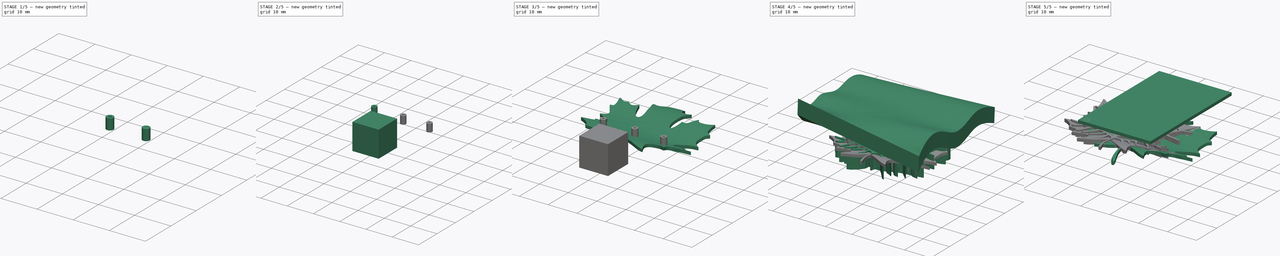
[diagram: build sequence overview — one tinted view per stage of 5, left to right]
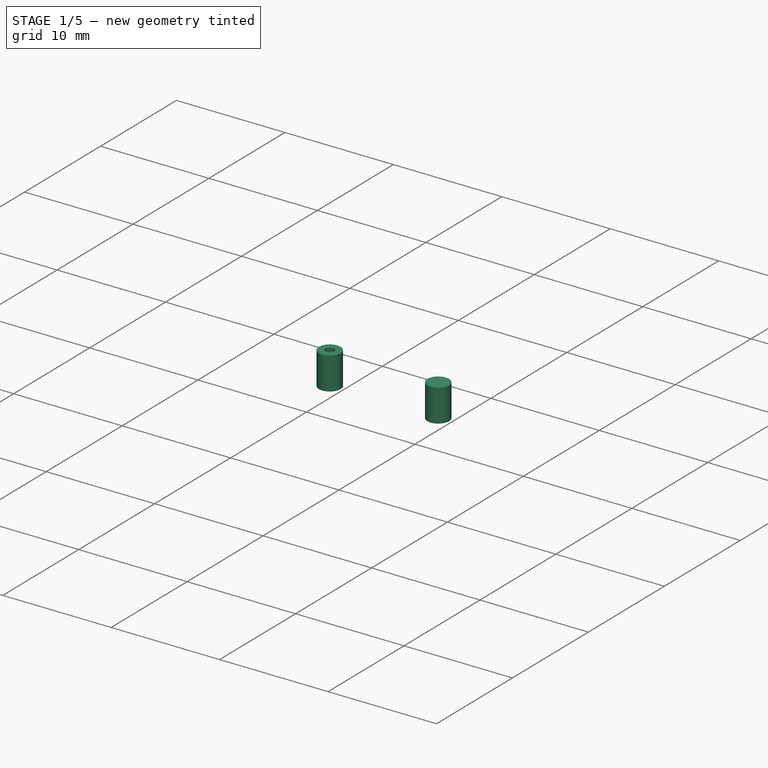
[diagram: stage 1 of 5 — iso view after this stage's code; geometry added in this stage tinted green]
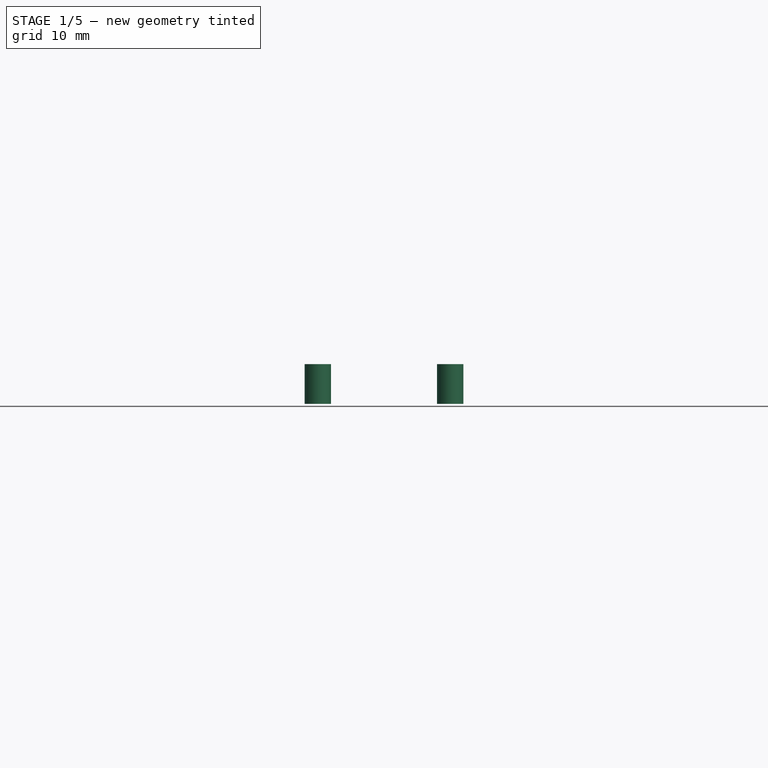
[diagram: stage 1 of 5 — front view after this stage's code; geometry added in this stage tinted green]
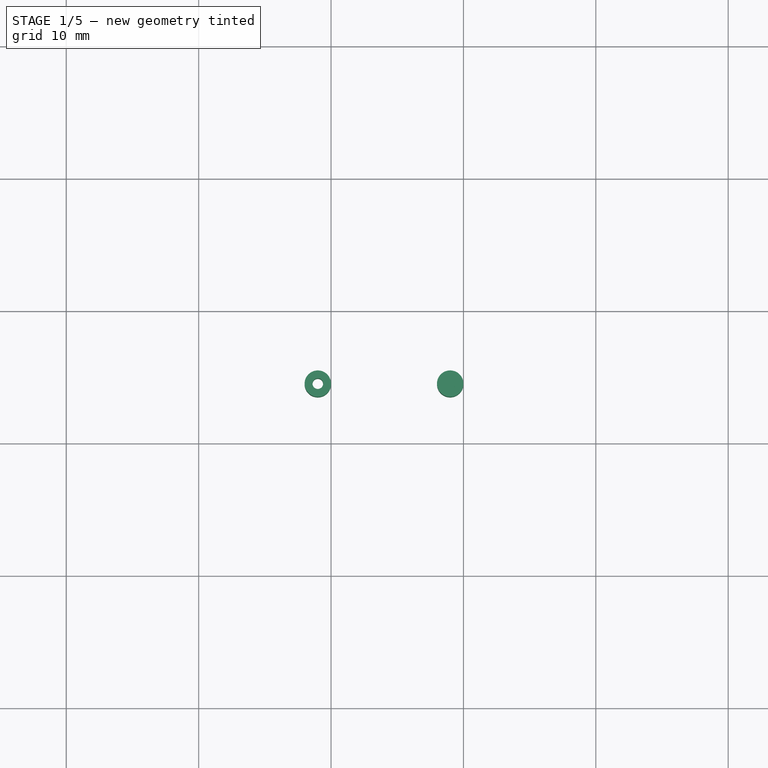
[diagram: stage 1 of 5 — top view after this stage's code; geometry added in this stage tinted green]
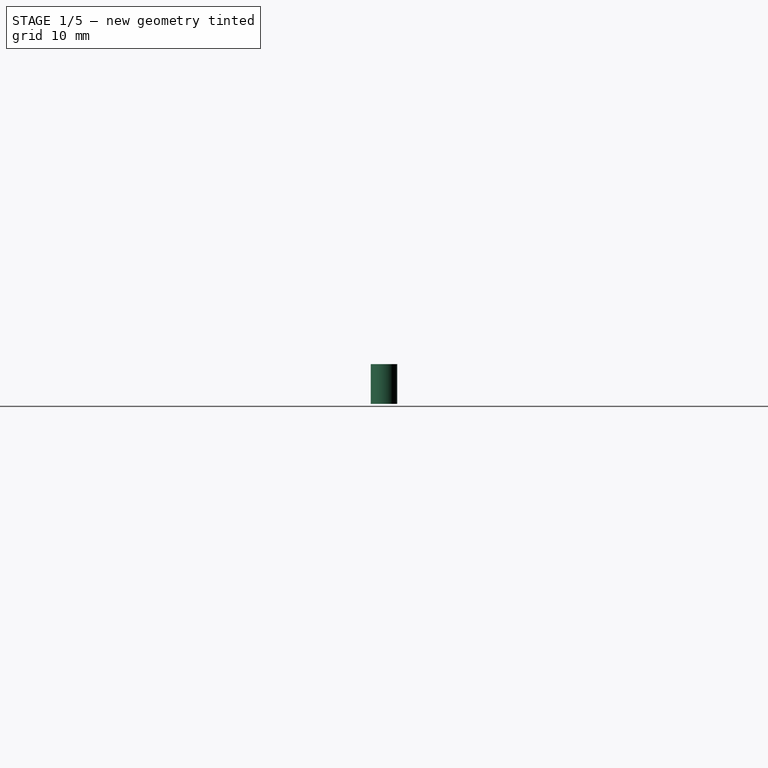
[diagram: stage 1 of 5 — right view after this stage's code; geometry added in this stage tinted green]
FCSTD DOCUMENT  (FreeCAD 0.19R)
Label: maple-leaf
License: All rights reserved
LicenseURL: http://en.wikipedia.org/wiki/All_rights_reserved
objects: Part::FeaturePython×9, Sketcher::SketchObject×8, Part::Cut×8, PartDesign::Body×6, Part::Cylinder×6, PartDesign::FeatureBase×5, App::MeasureDistance×5, PartDesign::Pad×4, Part::Extrusion×3, Part::Box×2, Part::Feature×1, Part::Compound×1
note: 57 computed .brp shape members not serialized (recipe doc carries the construction recipe); baked Part::Feature solids carry a one-line shape summary decoded from their .brp

FEATURE [Part::Cylinder] Cylinder001
  Angle = 360
  AttacherType = Attacher::AttachEngine3D
  Height = 3
  Placement = pos=(29,-25.5,-4) rot=(0,0,1;0rad)
  Radius = 1
FEATURE [Part::Cylinder] Cylinder002
  Angle = 360
  AttacherType = Attacher::AttachEngine3D
  Height = 3
  Placement = pos=(19,-25.5,-4) rot=(0,0,1;0rad)
  Radius = 1
FEATURE [Part::Cylinder] Cylinder004
  Angle = 360
  AttacherType = Attacher::AttachEngine3D
  Height = 3
  Placement = pos=(29,-25.5,-4) rot=(0,0,1;0rad)
  Radius = 0.4
FEATURE [Part::Cylinder] Cylinder005
  Angle = 360
  AttacherType = Attacher::AttachEngine3D
  Height = 3
  Placement = pos=(19,-25.5,-4) rot=(0,0,1;0rad)
  Radius = 0.4
FEATURE [Part::Cut] Cut007
  Base = -> Cylinder002
  Tool = -> Cylinder005
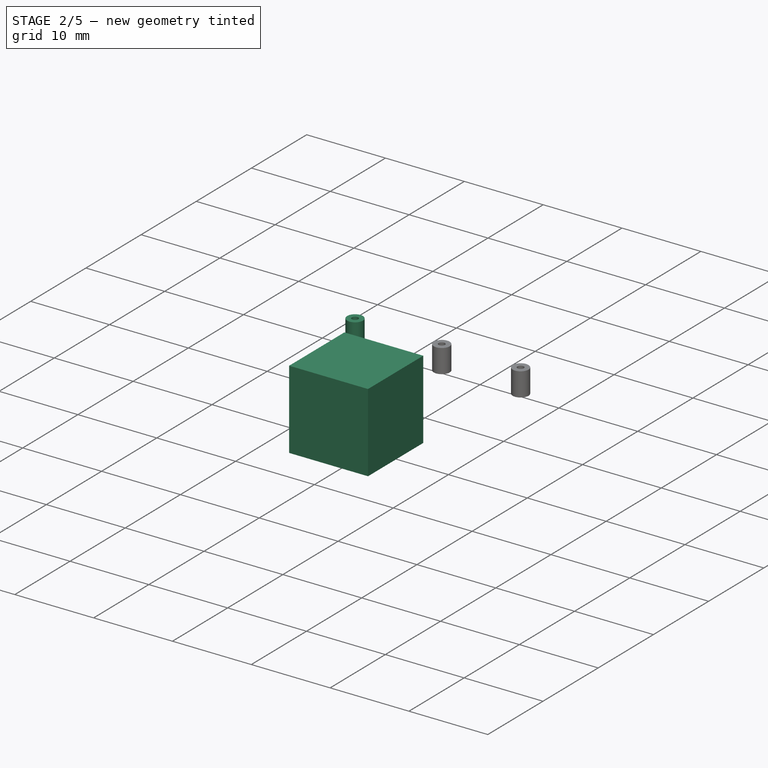
[diagram: stage 2 of 5 — iso view after this stage's code; geometry added in this stage tinted green]
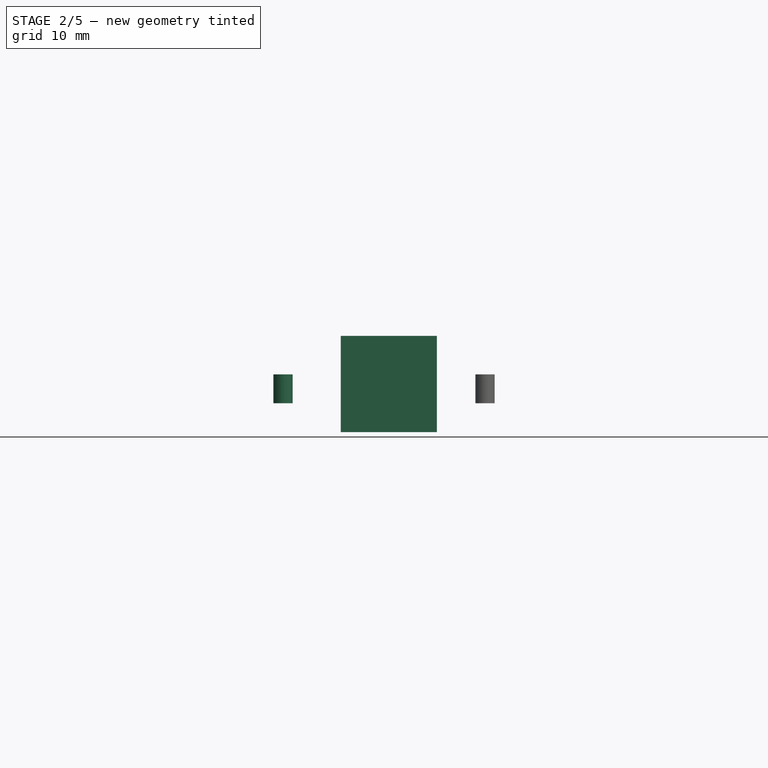
[diagram: stage 2 of 5 — front view after this stage's code; geometry added in this stage tinted green]
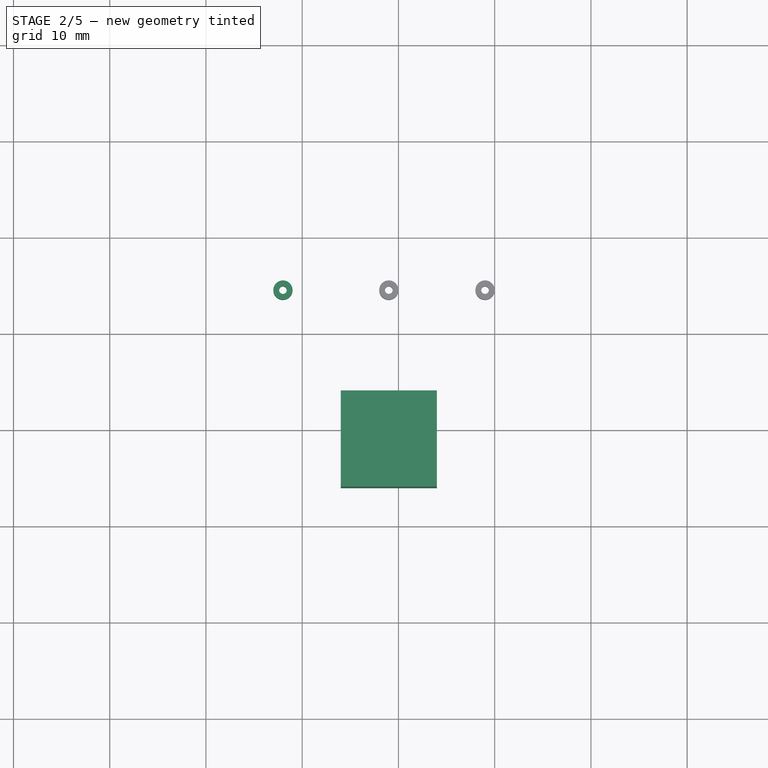
[diagram: stage 2 of 5 — top view after this stage's code; geometry added in this stage tinted green]
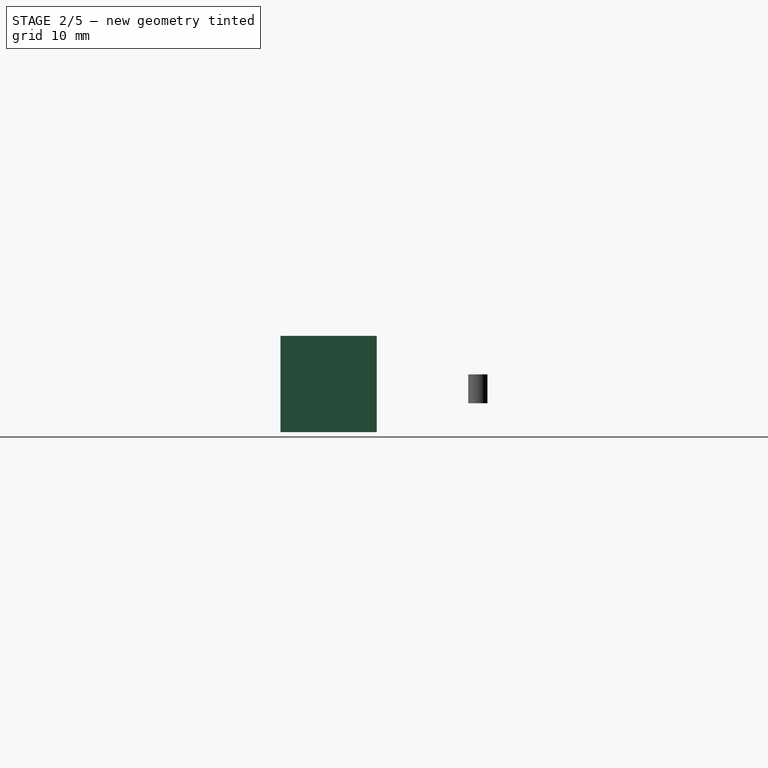
[diagram: stage 2 of 5 — right view after this stage's code; geometry added in this stage tinted green]
FEATURE [Part::Box] Box001  label="Cube001"
  AttacherType = Attacher::AttachEngine3D
  Height = 10
  Length = 10
  Placement = pos=(14,-46,-7) rot=(0,0,1;0rad)
  Width = 10
FEATURE [Part::Cylinder] Cylinder
  Angle = 360
  AttacherType = Attacher::AttachEngine3D
  Height = 3
  Placement = pos=(8,-25.5,-4) rot=(0,0,1;0rad)
  Radius = 1
FEATURE [Part::Cylinder] Cylinder003
  Angle = 360
  AttacherType = Attacher::AttachEngine3D
  Height = 3
  Placement = pos=(8,-25.5,-4) rot=(0,0,1;0rad)
  Radius = 0.4
FEATURE [Part::Cut] Cut005
  Base = -> Cylinder
  Tool = -> Cylinder003
FEATURE [Part::Cut] Cut006
  Base = -> Cylinder001
  Tool = -> Cylinder004
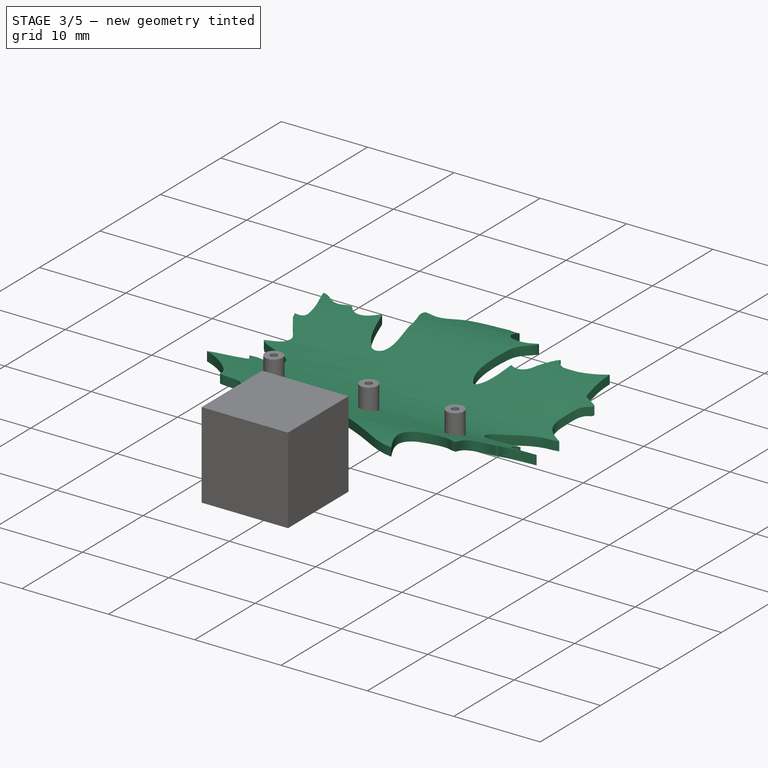
[diagram: stage 3 of 5 — iso view after this stage's code; geometry added in this stage tinted green]
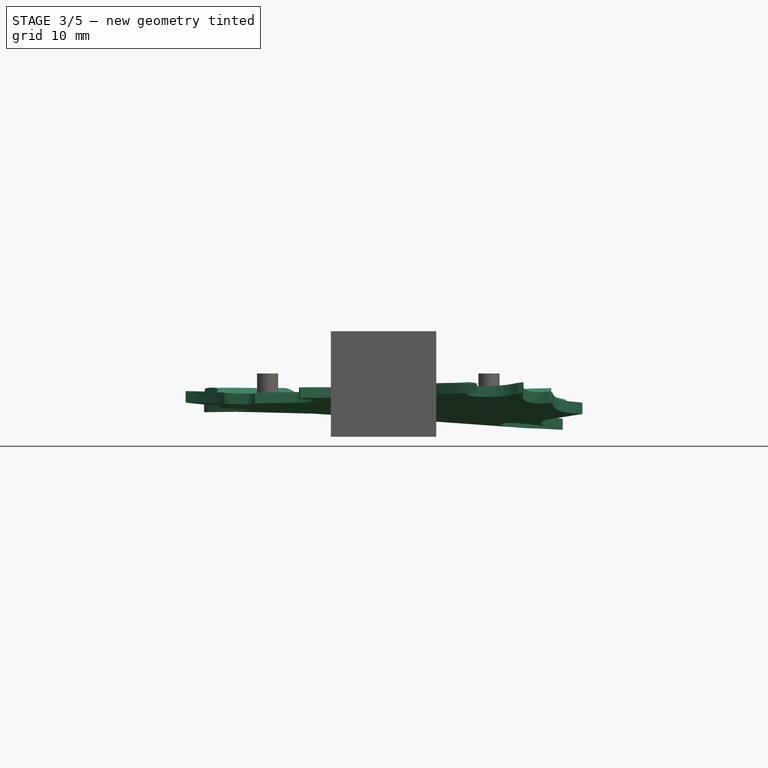
[diagram: stage 3 of 5 — front view after this stage's code; geometry added in this stage tinted green]
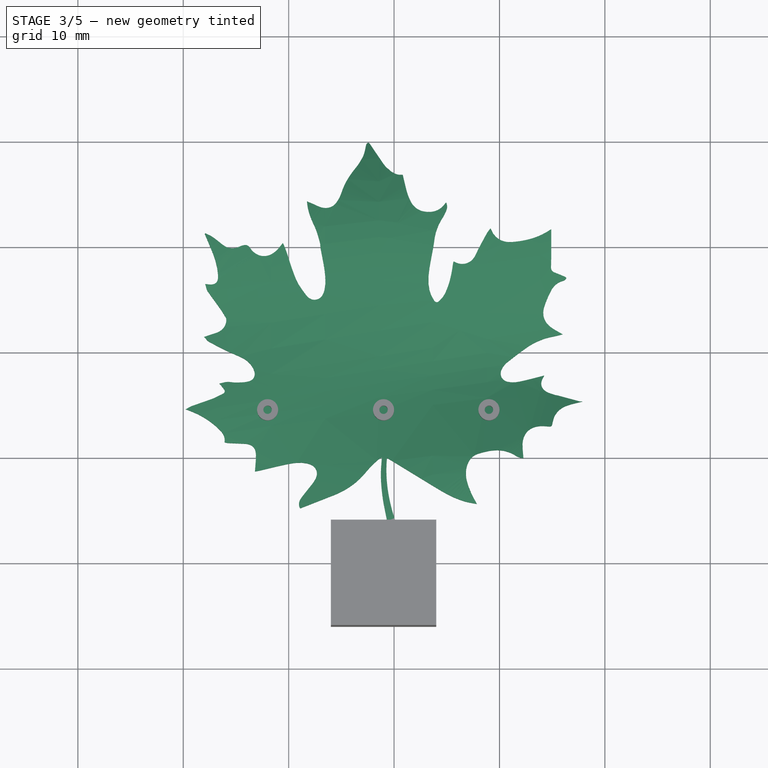
[diagram: stage 3 of 5 — top view after this stage's code; geometry added in this stage tinted green]
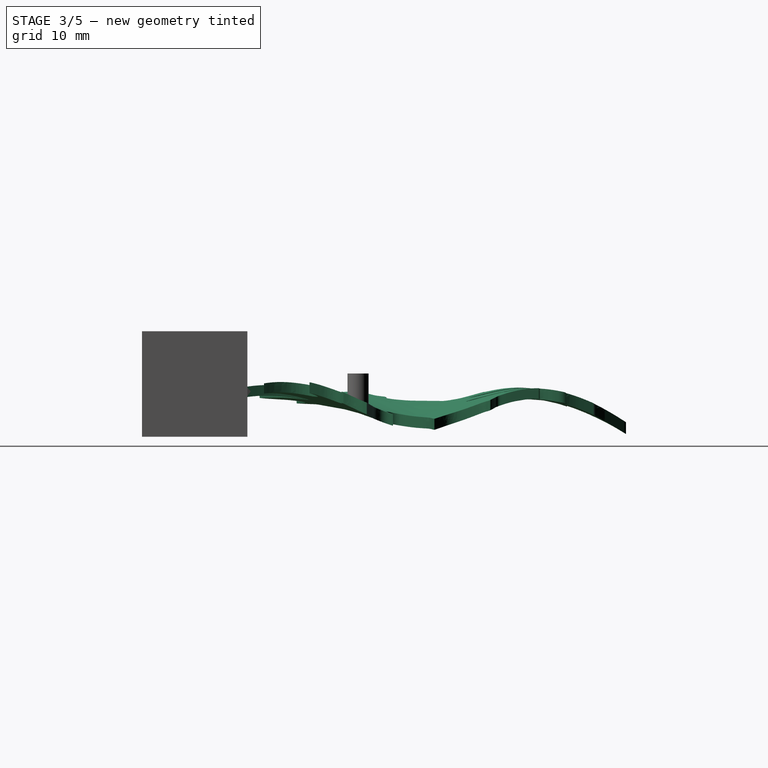
[diagram: stage 3 of 5 — right view after this stage's code; geometry added in this stage tinted green]
FEATURE [Part::Feature] path164
  Placement = pos=(6,0,0) rot=(0,0,1;0rad)
  shape: bbox 37.65 x 39.94 x 5.018e-07 mm, 0 faces, 0 solids (baked)
FEATURE [Sketcher::SketchObject] Sketch
  FullyConstrained = false
  Placement = pos=(45,0,0) rot=(0.57735,0.57735,0.57735;2.0944rad)
  sketch-geometry (11):
    g0-g5: Circle x6 (B-spline internal-alignment scaffolding for g6; pole/knot coordinates omitted)
    g6: BSplineCurve PolesCount=6 KnotsCount=4 Degree=3 IsPeriodic=0
    g7-g10: GeomPoint x4 (B-spline internal-alignment scaffolding for g6; pole/knot coordinates omitted)
  constraints (2):
    c: InternalAlignment(g0-g5 -> g6) x6
    c: InternalAlignment(g7-g10 -> g6) x4
FEATURE [Sketcher::SketchObject] Sketch001
  FullyConstrained = false
  Placement = pos=(-1,0,0) rot=(0.57735,0.57735,0.57735;2.0944rad)
  sketch-geometry (11):
    g0-g5: Circle x6 (B-spline internal-alignment scaffolding for g6; pole/knot coordinates omitted)
    g6: BSplineCurve PolesCount=6 KnotsCount=4 Degree=3 IsPeriodic=0
    g7-g10: GeomPoint x4 (B-spline internal-alignment scaffolding for g6; pole/knot coordinates omitted)
  constraints (2):
    c: InternalAlignment(g0-g5 -> g6) x6
    c: InternalAlignment(g7-g10 -> g6) x4
FEATURE [Part::FeaturePython] Freehand_BSpline  # WARN: FeaturePython — macro-defined, semantics opaque (R4)
  Data = (2) [(-1,-40.8598,9.96946),(45,-40.8696,2.16709)]
  DataType = [1,1]
  Parametrization = 1
  Periodic = false
  Support = -> [Sketch001,Sketch]
  Tangents = (2) [(0,0,0),(0,0,0)]
  Tolerance = 1e-05
FEATURE [Part::FeaturePython] Freehand_BSpline001  # WARN: FeaturePython — macro-defined, semantics opaque (R4)
  Data = (2) [(45,4.10599e-16,3.69835),(-1,-0.222447,1.07443)]
  DataType = [1,1]
  Parametrization = 1
  Periodic = false
  Support = -> [Sketch,Sketch001]
  Tangents = (2) [(0,0,0),(0,0,0)]
  Tolerance = 1e-05
FEATURE [Part::FeaturePython] Gordon  # WARN: FeaturePython — macro-defined, semantics opaque (R4)
  FlipNormal = false
  MaxCtrlPts = 80
  Output = 0
  SamplesU = 16
  SamplesV = 16
  Sources = -> [Sketch,Sketch001,Freehand_BSpline,Freehand_BSpline001]
  Tol2D = 1e-05
  Tol3D = 0.01
FEATURE [PartDesign::FeatureBase] BaseFeature
  BaseFeature = -> Gordon
FEATURE [PartDesign::Pad] Pad
  BaseFeature = -> BaseFeature
  Direction = (1,1,1)
  Length = 7.5
  Length2 = 100
  Profile = -> BaseFeature
  Type = 0
FEATURE [PartDesign::Body] Body
  BaseFeature = -> Gordon
  Group = -> [BaseFeature,Pad]
  Origin = -> Origin
  Placement = pos=(0,1,-8.75) rot=(0,0,1;0rad)
  Tip = -> Pad
FEATURE [Part::Extrusion] Extrude
  Base = -> path164
  Dir = (0,0,-1)
  DirMode = 2
  FaceMakerClass = Part::FaceMakerBullseye
  LengthFwd = 8
  LengthRev = 0
  Solid = true
  Symmetric = false
FEATURE [PartDesign::FeatureBase] BaseFeature001
  BaseFeature = -> Gordon
FEATURE [PartDesign::Pad] Pad001
  BaseFeature = -> BaseFeature001
  Direction = (1,1,1)
  Length = 5.25
  Length2 = 100
  Profile = -> BaseFeature001
  Type = 0
FEATURE [PartDesign::Body] Body001
  BaseFeature = -> Gordon
  Group = -> [BaseFeature001,Pad001]
  Origin = -> Origin001
  Placement = pos=(-1,1,-15) rot=(0,0,1;0rad)
  Tip = -> Pad001
FEATURE [Part::Cut] Cut
  Base = -> Extrude
  Tool = -> Body001
FEATURE [Part::Cut] Cut001
  Base = -> Cut
  Placement = pos=(-6,0,0) rot=(0,0,1;0rad)
  Tool = -> Body
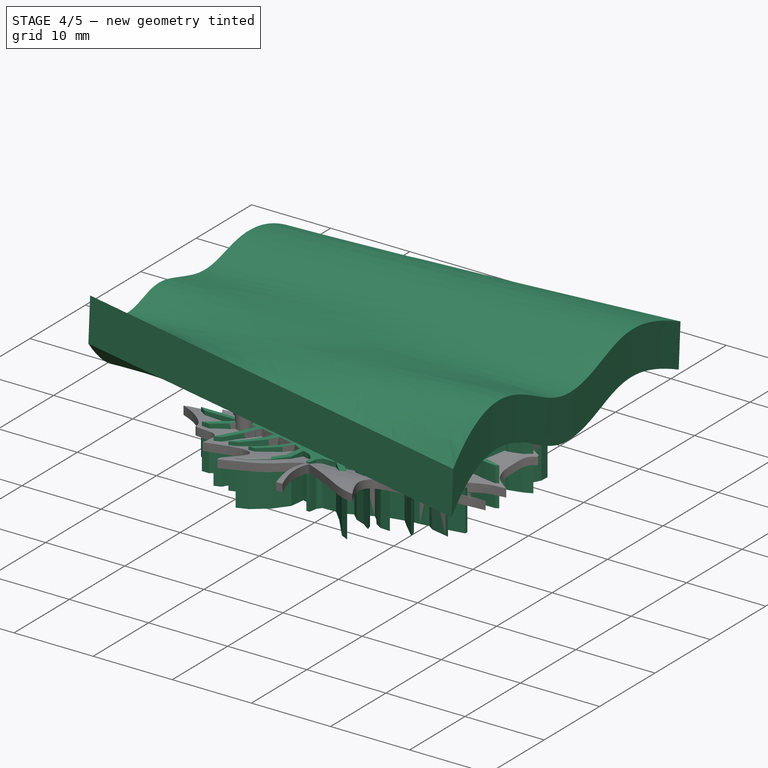
[diagram: stage 4 of 5 — iso view after this stage's code; geometry added in this stage tinted green]
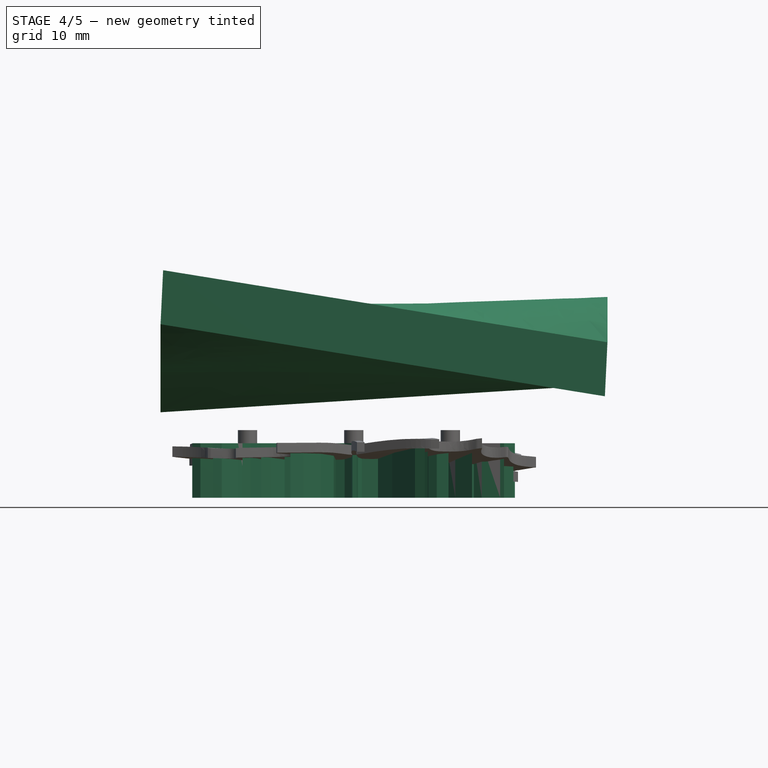
[diagram: stage 4 of 5 — front view after this stage's code; geometry added in this stage tinted green]
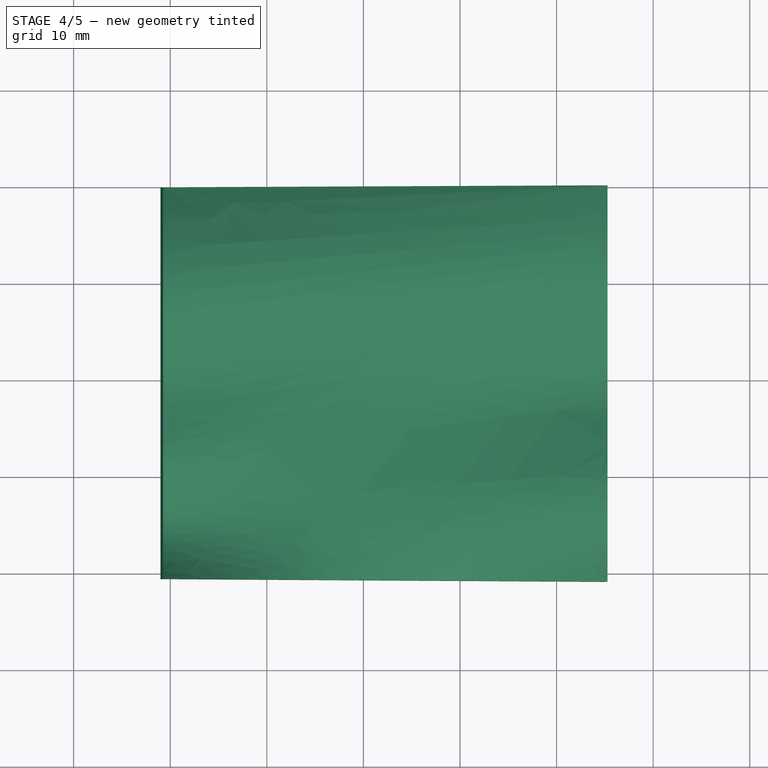
[diagram: stage 4 of 5 — top view after this stage's code; geometry added in this stage tinted green]
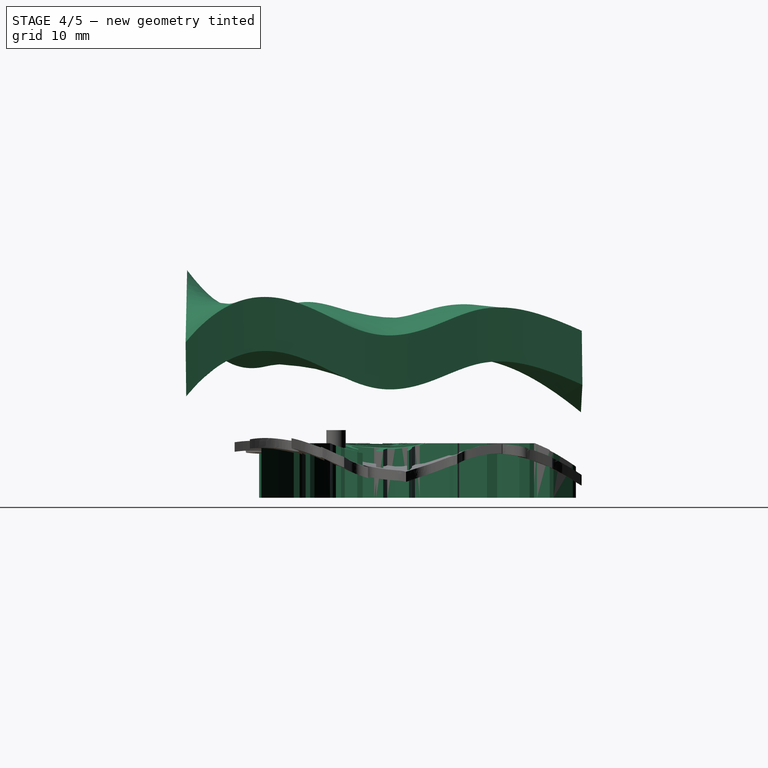
[diagram: stage 4 of 5 — right view after this stage's code; geometry added in this stage tinted green]
FEATURE [PartDesign::Body] Body002
  BaseFeature = -> Cut001
  Group = -> [BaseFeature002]
  Origin = -> Origin002
  Tip = -> BaseFeature002
FEATURE [Sketcher::SketchObject] Sketch002
  FullyConstrained = false
  MapMode = 5
  Support = -> [XY_Plane003]
  sketch-geometry (361):
    g0: LineSegment StartX=19.2858 StartY=-29.8919 StartZ=0 EndX=19.4404 EndY=-28.9436 EndZ=0
    g1: LineSegment StartX=35.5214 StartY=-24.9964 StartZ=0 EndX=35.5214 EndY=-24.6018 EndZ=0
    g2: LineSegment StartX=28.2208 StartY=-19.4048 StartZ=0 EndX=29.5617 EndY=-17.9211 EndZ=0
    g3: LineSegment StartX=34.6024 StartY=-8.82939 StartZ=0 EndX=33.5436 EndY=-10.6938 EndZ=0
    g4: LineSegment StartX=27.6815 StartY=-18.5624 StartZ=0 EndX=22.9598 EndY=-20.9921 EndZ=0
    g5: LineSegment StartX=19.4192 StartY=-21.0999 StartZ=0 EndX=19.5261 EndY=-19.8967 EndZ=0
    g6: LineSegment StartX=17.5284 StartY=-0.669831 StartZ=0 EndX=18.28 EndY=-3.12413 EndZ=0
    g7: LineSegment StartX=16.7052 StartY=-23.5065 StartZ=0 EndX=14.7433 EndY=-19.1378 EndZ=0
    g8: LineSegment StartX=3.25012 StartY=-10.1129 StartZ=0 EndX=3.6512 EndY=-11.3429 EndZ=0
    g9: LineSegment StartX=3.6512 StartY=-11.3429 StartZ=0 EndX=6.05771 EndY=-13.5087 EndZ=0
    g10: LineSegment StartX=14.4163 StartY=-19.7015 StartZ=0 EndX=14.6035 EndY=-20.7443 EndZ=0
    g11: LineSegment StartX=4.71263 StartY=-25.2219 StartZ=0 EndX=2.28407 EndY=-25.2219 EndZ=0
    g12: LineSegment StartX=2.28407 StartY=-25.2219 StartZ=0 EndX=3.12362 EndY=-25.7844 EndZ=0
    g13: LineSegment StartX=3.12362 StartY=-25.7844 StartZ=0 EndX=7.45438 EndY=-25.6736 EndZ=0
    g14: LineSegment StartX=18.0509 StartY=-28.2238 StartZ=0 EndX=18.7644 EndY=-28.9373 EndZ=0
    g15: LineSegment StartX=18.7644 StartY=-28.9373 StartZ=0 EndX=18.872 EndY=-29.8973 EndZ=0
    g16: LineSegment StartX=18.872 StartY=-29.8973 StartZ=0 EndX=19.2858 EndY=-29.8919 EndZ=0
    g17: LineSegment StartX=19.8173 StartY=-11.958 StartZ=0 EndX=21.9352 EndY=-10.4857 EndZ=0
    g18: LineSegment StartX=21.9352 StartY=-10.4857 StartZ=0 EndX=23.5081 EndY=-8.3052 EndZ=0
    g19: LineSegment StartX=23.5081 StartY=-8.3052 StartZ=0 EndX=24.521 EndY=-6.68882 EndZ=0
    g20: LineSegment StartX=24.521 StartY=-6.68882 StartZ=0 EndX=23.619 EndY=-7.20033 EndZ=0
    g21: LineSegment StartX=23.619 StartY=-7.20033 StartZ=0 EndX=21.7648 EndY=-9.94528 EndZ=0
    g22: LineSegment StartX=21.7648 StartY=-9.94528 StartZ=0 EndX=19.9314 EndY=-11.1883 EndZ=0
    g23: LineSegment StartX=19.9314 StartY=-11.1883 StartZ=0 EndX=19.6315 EndY=-8.32252 EndZ=0
    g24: LineSegment StartX=19.3285 StartY=-11.8491 StartZ=0 EndX=17.369 EndY=-11.1897 EndZ=0
    g25: LineSegment StartX=17.369 StartY=-11.1897 StartZ=0 EndX=14.9525 EndY=-9.88657 EndZ=0
    g26: LineSegment StartX=12.4714 StartY=-6.34059 StartZ=0 EndX=15.417 EndY=-9.51167 EndZ=0
    g27: LineSegment StartX=17.6768 StartY=-10.766 StartZ=0 EndX=19.3427 EndY=-11.177 EndZ=0
    g28: LineSegment StartX=19.3427 StartY=-11.177 StartZ=0 EndX=18.9884 EndY=-8.5455 EndZ=0
    g29: LineSegment StartX=9.74859 StartY=-16.0996 StartZ=0 EndX=9.80117 EndY=-14.7387 EndZ=0
    g30: LineSegment StartX=9.80117 StartY=-14.7387 StartZ=0 EndX=9.80117 EndY=-13.037 EndZ=0
    g31: LineSegment StartX=9.80117 StartY=-13.037 StartZ=0 EndX=9.80117 EndY=-11.4709 EndZ=0
    g32: LineSegment StartX=9.80117 StartY=-11.4709 StartZ=0 EndX=9.3319 EndY=-10.5095 EndZ=0
    g33: LineSegment StartX=9.3319 StartY=-10.5095 StartZ=0 EndX=9.33265 EndY=-11.574 EndZ=0
    g34: LineSegment StartX=9.33265 StartY=-11.574 StartZ=0 EndX=9.33265 EndY=-13.0508 EndZ=0
    g35: LineSegment StartX=9.33265 StartY=-13.0508 StartZ=0 EndX=9.33265 EndY=-14.596 EndZ=0
    g36: LineSegment StartX=9.33265 StartY=-14.596 StartZ=0 EndX=9.13269 EndY=-15.3003 EndZ=0
    g37: LineSegment StartX=9.13269 StartY=-15.3003 StartZ=0 EndX=6.99697 EndY=-13.4968 EndZ=0
    g38: LineSegment StartX=6.05771 StartY=-13.5087 StartZ=0 EndX=5.69215 EndY=-13.9089 EndZ=0
    g39: LineSegment StartX=5.69215 StartY=-13.9089 StartZ=0 EndX=4.11264 EndY=-13.9089 EndZ=0
    g40: LineSegment StartX=4.11264 StartY=-13.9089 StartZ=0 EndX=2.84216 EndY=-13.9089 EndZ=0
    g41: LineSegment StartX=2.84216 StartY=-13.9089 StartZ=0 EndX=3.35707 EndY=-14.3911 EndZ=0
    g42: LineSegment StartX=3.35707 StartY=-14.3911 StartZ=0 EndX=5.44271 EndY=-14.6585 EndZ=0
    g43: LineSegment StartX=5.44271 StartY=-14.6585 StartZ=0 EndX=6.85988 EndY=-14.2307 EndZ=0
    g44: LineSegment StartX=6.85988 StartY=-14.2307 StartZ=0 EndX=8.90928 EndY=-16.0261 EndZ=0
    g45: LineSegment StartX=8.90928 StartY=-16.0261 StartZ=0 EndX=7.71805 EndY=-16.5872 EndZ=0
    g46: LineSegment StartX=7.71805 StartY=-16.5872 StartZ=0 EndX=6.72227 EndY=-17.2053 EndZ=0
    g47: LineSegment StartX=6.72227 StartY=-17.2053 StartZ=0 EndX=5.2801 EndY=-17.8577 EndZ=0
    g48: LineSegment StartX=5.2801 StartY=-17.8577 StartZ=0 EndX=3.39156 EndY=-18.5101 EndZ=0
    g49: LineSegment StartX=3.39156 StartY=-18.5101 StartZ=0 EndX=4.48011 EndY=-18.6694 EndZ=0
    g50: LineSegment StartX=4.48011 StartY=-18.6694 StartZ=0 EndX=7.23423 EndY=-17.8672 EndZ=0
    g51: LineSegment StartX=7.23423 StartY=-17.8672 StartZ=0 EndX=8.59792 EndY=-17.065 EndZ=0
    g52: LineSegment StartX=8.59792 StartY=-17.065 StartZ=0 EndX=9.45356 EndY=-16.6372 EndZ=0
    g53: LineSegment StartX=29.5617 StartY=-17.9211 StartZ=0 EndX=30.9776 EndY=-18.0557 EndZ=0
    g54: LineSegment StartX=30.9776 StartY=-18.0557 StartZ=0 EndX=32.2107 EndY=-18.0557 EndZ=0
    g55: LineSegment StartX=32.2107 StartY=-18.0557 StartZ=0 EndX=33.2955 EndY=-18.1485 EndZ=0
    g56: LineSegment StartX=33.2955 StartY=-18.1485 StartZ=0 EndX=34.5333 EndY=-18.1485 EndZ=0
    g57: LineSegment StartX=34.5333 StartY=-18.1485 StartZ=0 EndX=34.8872 EndY=-17.9476 EndZ=0
    g58: LineSegment StartX=34.8872 StartY=-17.9476 StartZ=0 EndX=32.9401 EndY=-17.6694 EndZ=0
    g59: LineSegment StartX=32.9401 StartY=-17.6694 StartZ=0 EndX=32.2086 EndY=-17.6385 EndZ=0
    g60: LineSegment StartX=32.2086 StartY=-17.6385 StartZ=0 EndX=31.1476 EndY=-17.6385 EndZ=0
    g61: LineSegment StartX=31.1476 StartY=-17.6385 StartZ=0 EndX=30.1277 EndY=-17.3295 EndZ=0
    g62: LineSegment StartX=30.1277 StartY=-17.3295 StartZ=0 EndX=30.5514 EndY=-16.8393 EndZ=0
    g63: LineSegment StartX=30.5514 StartY=-16.8393 StartZ=0 EndX=32.6817 EndY=-13.7494 EndZ=0
    g64: LineSegment StartX=32.6817 StartY=-13.7494 StartZ=0 EndX=33.0873 EndY=-13.7494 EndZ=0
    g65: LineSegment StartX=33.0873 StartY=-13.7494 StartZ=0 EndX=34.6754 EndY=-13.3553 EndZ=0
    g66: LineSegment StartX=34.6754 StartY=-13.3553 StartZ=0 EndX=35.6765 EndY=-12.9205 EndZ=0
    g67: LineSegment StartX=35.6765 StartY=-12.9205 StartZ=0 EndX=35.008 EndY=-12.7601 EndZ=0
    g68: LineSegment StartX=35.008 StartY=-12.7601 StartZ=0 EndX=34.47 EndY=-12.9718 EndZ=0
    g69: LineSegment StartX=33.6201 StartY=-13.0707 StartZ=0 EndX=32.8474 EndY=-13.0861 EndZ=0
    g70: LineSegment StartX=32.8474 StartY=-13.0861 StartZ=0 EndX=34.5627 EndY=-9.87194 EndZ=0
    g71: LineSegment StartX=34.5627 StartY=-9.87194 StartZ=0 EndX=34.6024 EndY=-8.82939 EndZ=0
    g72: LineSegment StartX=33.6201 StartY=-13.0707 StartZ=0 EndX=34.47 EndY=-12.9718 EndZ=0
    g73: LineSegment StartX=31.7398 StartY=-13.8675 StartZ=0 EndX=30.6059 EndY=-13.1899 EndZ=0
    g74: LineSegment StartX=30.6059 StartY=-13.1899 StartZ=0 EndX=29.7773 EndY=-12.1312 EndZ=0
    g75: LineSegment StartX=29.7773 StartY=-12.1312 StartZ=0 EndX=29.2501 EndY=-11.0419 EndZ=0
    g76: LineSegment StartX=28.8606 StartY=-9.45471 StartZ=0 EndX=29.2625 EndY=-9.58895 EndZ=0
    g77: LineSegment StartX=29.2625 StartY=-9.58895 StartZ=0 EndX=29.7878 EndY=-10.9382 EndZ=0
    g78: LineSegment StartX=29.7878 StartY=-10.9382 StartZ=0 EndX=30.2204 EndY=-11.8653 EndZ=0
    g79: LineSegment StartX=30.2204 StartY=-11.8653 StartZ=0 EndX=31.0085 EndY=-12.7616 EndZ=0
    g80: LineSegment StartX=31.0085 StartY=-12.7616 StartZ=0 EndX=31.8584 EndY=-13.2561 EndZ=0
    g81: LineSegment StartX=31.8584 StartY=-13.2561 StartZ=0 EndX=33.5436 EndY=-10.6938 EndZ=0
    g82: LineSegment StartX=17.6768 StartY=-10.766 StartZ=0 EndX=15.417 EndY=-9.51167 EndZ=0
    g83: LineSegment StartX=27.6815 StartY=-18.5624 StartZ=0 EndX=28.9383 EndY=-17.2522 EndZ=0
    g84: LineSegment StartX=28.9383 StartY=-17.2522 StartZ=0 EndX=28.1695 EndY=-16.0322 EndZ=0
    g85: LineSegment StartX=28.1695 StartY=-16.0322 StartZ=0 EndX=27.269 EndY=-14.4398 EndZ=0
    g86: LineSegment StartX=27.269 StartY=-14.4398 StartZ=0 EndX=26.0329 EndY=-12.1245 EndZ=0
    g87: LineSegment StartX=26.0329 StartY=-12.1245 StartZ=0 EndX=26.6654 EndY=-12.1718 EndZ=0
    g88: LineSegment StartX=26.6654 StartY=-12.1718 StartZ=0 EndX=27.8869 EndY=-14.3037 EndZ=0
    g89: LineSegment StartX=27.8869 StartY=-14.3037 StartZ=0 EndX=28.806 EndY=-15.8297 EndZ=0
    g90: LineSegment StartX=28.806 StartY=-15.8297 StartZ=0 EndX=29.6796 EndY=-16.7577 EndZ=0
    g91: LineSegment StartX=29.6796 StartY=-16.7577 StartZ=0 EndX=30.5913 EndY=-15.4442 EndZ=0
    g92: LineSegment StartX=30.5913 StartY=-15.4442 StartZ=0 EndX=31.7398 EndY=-13.8675 EndZ=0
    g93: LineSegment StartX=30.6461 StartY=-25.3035 StartZ=0 EndX=31.6291 EndY=-24.5636 EndZ=0
    g94: LineSegment StartX=31.6291 StartY=-24.5636 StartZ=0 EndX=32.8925 EndY=-23.2011 EndZ=0
    g95: LineSegment StartX=32.8925 StartY=-23.2011 StartZ=0 EndX=33.4266 EndY=-22.7512 EndZ=0
    g96: LineSegment StartX=33.4266 StartY=-22.7512 StartZ=0 EndX=33.3978 EndY=-23.3051 EndZ=0
    g97: LineSegment StartX=33.3978 StartY=-23.3051 StartZ=0 EndX=32.1896 EndY=-24.691 EndZ=0
    g98: LineSegment StartX=32.1896 StartY=-24.691 StartZ=0 EndX=31.29 EndY=-25.2533 EndZ=0
    g99: LineSegment StartX=31.29 StartY=-25.2533 StartZ=0 EndX=35.5214 EndY=-24.6018 EndZ=0
    g100: LineSegment StartX=31.4433 StartY=-25.6541 StartZ=0 EndX=32.2514 EndY=-26.1991 EndZ=0
    g101: LineSegment StartX=32.2514 StartY=-26.1991 StartZ=0 EndX=34.1575 EndY=-26.6027 EndZ=0
    g102: LineSegment StartX=34.1575 StartY=-26.6027 StartZ=0 EndX=34.5511 EndY=-26.7152 EndZ=0
    g103: LineSegment StartX=34.5511 StartY=-26.7152 StartZ=0 EndX=33.9428 EndY=-26.124 EndZ=0
    g104: LineSegment StartX=33.9428 StartY=-26.124 StartZ=0 EndX=32.9206 EndY=-25.8437 EndZ=0
    g105: LineSegment StartX=32.9206 StartY=-25.8437 StartZ=0 EndX=32.3642 EndY=-25.5226 EndZ=0
    g106: LineSegment StartX=32.3642 StartY=-25.5226 StartZ=0 EndX=35.5214 EndY=-24.9964 EndZ=0
    g107: LineSegment StartX=28.5756 StartY=-26.0225 StartZ=0 EndX=29.5152 EndY=-26.9997 EndZ=0
    g108: LineSegment StartX=29.5152 StartY=-26.9997 StartZ=0 EndX=31.2441 EndY=-28.6535 EndZ=0
    g109: LineSegment StartX=31.2441 StartY=-28.6535 StartZ=0 EndX=31.2066 EndY=-28.1836 EndZ=0
    g110: LineSegment StartX=31.2066 StartY=-28.1836 StartZ=0 EndX=30.9435 EndY=-27.7326 EndZ=0
    g111: LineSegment StartX=30.9435 StartY=-27.7326 StartZ=0 EndX=30.0997 EndY=-26.7922 EndZ=0
    g112: LineSegment StartX=30.0997 StartY=-26.7922 StartZ=0 EndX=29.2328 EndY=-25.85 EndZ=0
    g113: LineSegment StartX=29.2328 StartY=-25.85 StartZ=0 EndX=30.3346 EndY=-25.8045 EndZ=0
    g114: LineSegment StartX=30.3346 StartY=-25.8045 StartZ=0 EndX=31.4433 EndY=-25.6541 EndZ=0
    g115: LineSegment StartX=21.5133 StartY=-28.3152 StartZ=0 EndX=22.9791 EndY=-29.8186 EndZ=0
    g116: LineSegment StartX=22.9791 StartY=-29.8186 StartZ=0 EndX=25.347 EndY=-32.7315 EndZ=0
    g117: LineSegment StartX=25.347 StartY=-32.7315 StartZ=0 EndX=26.3646 EndY=-33.2374 EndZ=0
    g118: LineSegment StartX=26.3646 StartY=-33.2374 StartZ=0 EndX=25.1046 EndY=-31.4879 EndZ=0
    g119: LineSegment StartX=25.1046 StartY=-31.4879 StartZ=0 EndX=23.7006 EndY=-29.574 EndZ=0
    g120: LineSegment StartX=23.7006 StartY=-29.574 StartZ=0 EndX=22.4717 EndY=-28.24 EndZ=0
    g121: LineSegment StartX=8.1329 StartY=-25.1655 StartZ=0 EndX=6.21604 EndY=-23.3051 EndZ=0
    g122: LineSegment StartX=6.21604 StartY=-23.3051 StartZ=0 EndX=4.97783 EndY=-23.2778 EndZ=0
    g123: LineSegment StartX=4.97783 StartY=-23.2778 StartZ=0 EndX=6.00795 EndY=-23.9646 EndZ=0
    g124: LineSegment StartX=6.00795 StartY=-23.9646 StartZ=0 EndX=7.49395 EndY=-25.2219 EndZ=0
    g125: LineSegment StartX=7.49395 StartY=-25.2219 StartZ=0 EndX=4.71263 EndY=-25.2219 EndZ=0
    g126: LineSegment StartX=7.45438 StartY=-25.6736 StartZ=0 EndX=6.59168 EndY=-26.4369 EndZ=0
    g127: LineSegment StartX=6.59168 StartY=-26.4369 StartZ=0 EndX=5.25253 EndY=-27.5013 EndZ=0
    g128: LineSegment StartX=5.25253 StartY=-27.5013 StartZ=0 EndX=4.42843 EndY=-28.1194 EndZ=0
    g129: LineSegment StartX=4.42843 StartY=-28.1194 StartZ=0 EndX=5.33279 EndY=-28.1348 EndZ=0
    g130: LineSegment StartX=5.33279 StartY=-28.1348 StartZ=0 EndX=7.00534 EndY=-26.8381 EndZ=0
    g131: LineSegment StartX=7.00534 StartY=-26.8381 StartZ=0 EndX=8.15169 EndY=-25.6917 EndZ=0
    g132: LineSegment StartX=8.15169 StartY=-25.6917 StartZ=0 EndX=9.73027 EndY=-25.8984 EndZ=0
    g133: LineSegment StartX=9.73027 StartY=-25.8984 StartZ=0 EndX=9.4108 EndY=-26.5938 EndZ=0
    g134: LineSegment StartX=9.4108 StartY=-26.5938 StartZ=0 EndX=8.84702 EndY=-27.9844 EndZ=0
    g135: LineSegment StartX=8.84702 StartY=-27.9844 StartZ=0 EndX=7.96517 EndY=-29.5272 EndZ=0
    g136: LineSegment StartX=7.96517 StartY=-29.5272 StartZ=0 EndX=7.48445 EndY=-30.3856 EndZ=0
    g137: LineSegment StartX=7.48445 StartY=-30.3856 StartZ=0 EndX=8.32082 EndY=-30.0892 EndZ=0
    g138: LineSegment StartX=8.32082 StartY=-30.0892 StartZ=0 EndX=9.58636 EndY=-27.8959 EndZ=0
    g139: LineSegment StartX=9.58636 StartY=-27.8959 StartZ=0 EndX=10.1284 EndY=-26.6429 EndZ=0
    g140: LineSegment StartX=18.0509 StartY=-28.2238 StartZ=0 EndX=17.1346 EndY=-27.9581 EndZ=0
    g141: LineSegment StartX=17.1346 StartY=-27.9581 StartZ=0 EndX=16.9279 EndY=-29.7998 EndZ=0
    g142: LineSegment StartX=16.9279 StartY=-29.7998 StartZ=0 EndX=15.5936 EndY=-31.5287 EndZ=0
    g143: LineSegment StartX=15.5936 StartY=-31.5287 StartZ=0 EndX=13.7682 EndY=-32.9609 EndZ=0
    g144: LineSegment StartX=13.7682 StartY=-32.9609 StartZ=0 EndX=12.4364 EndY=-33.4644 EndZ=0
    g145: LineSegment StartX=12.4364 StartY=-33.4644 StartZ=0 EndX=13.5113 EndY=-32.5817 EndZ=0
    g146: LineSegment StartX=13.5113 StartY=-32.5817 StartZ=0 EndX=15.2282 EndY=-31.1052 EndZ=0
    g147: LineSegment StartX=15.2282 StartY=-31.1052 StartZ=0 EndX=16.2404 EndY=-29.6989 EndZ=0
    g148: LineSegment StartX=16.2404 StartY=-29.6989 StartZ=0 EndX=16.527 EndY=-27.7496 EndZ=0
    g149: LineSegment StartX=10.5384 StartY=-25.3459 StartZ=0 EndX=10.2189 EndY=-24.5266 EndZ=0
    g150: LineSegment StartX=10.2189 StartY=-24.5266 StartZ=0 EndX=9.52356 EndY=-23.4178 EndZ=0
    g151: LineSegment StartX=9.52356 StartY=-23.4178 StartZ=0 EndX=8.17048 EndY=-22.1587 EndZ=0
    g152: LineSegment StartX=8.17048 StartY=-22.1587 StartZ=0 EndX=7.14214 EndY=-21.9713 EndZ=0
    g153: LineSegment StartX=7.14214 StartY=-21.9713 StartZ=0 EndX=7.70747 EndY=-22.4047 EndZ=0
    g154: LineSegment StartX=7.70747 StartY=-22.4047 StartZ=0 EndX=8.91353 EndY=-23.5354 EndZ=0
    g155: LineSegment StartX=8.91353 StartY=-23.5354 StartZ=0 EndX=9.64848 EndY=-24.6661 EndZ=0
    g156: LineSegment StartX=9.64848 StartY=-24.6661 StartZ=0 EndX=9.84303 EndY=-25.3535 EndZ=0
    g157: LineSegment StartX=9.84303 StartY=-25.3535 StartZ=0 EndX=8.1329 EndY=-25.1655 EndZ=0
    g158: LineSegment StartX=14.4163 StartY=-19.7015 StartZ=0 EndX=12.9189 EndY=-20.1293 EndZ=0
    g159: LineSegment StartX=12.9189 StartY=-20.1293 StartZ=0 EndX=10.7798 EndY=-20.5571 EndZ=0
    g160: LineSegment StartX=10.7798 StartY=-20.5571 StartZ=0 EndX=9.01504 EndY=-20.6908 EndZ=0
    g161: LineSegment StartX=9.01504 StartY=-20.6908 StartZ=0 EndX=7.67809 EndY=-20.6374 EndZ=0
    g162: LineSegment StartX=7.67809 StartY=-20.6374 StartZ=0 EndX=6.60853 EndY=-19.8619 EndZ=0
    g163: LineSegment StartX=6.60853 StartY=-19.8619 StartZ=0 EndX=7.94548 EndY=-20.263 EndZ=0
    g164: LineSegment StartX=7.94548 StartY=-20.263 StartZ=0 EndX=9.03446 EndY=-20.0982 EndZ=0
    g165: LineSegment StartX=9.03446 StartY=-20.0982 StartZ=0 EndX=10.5588 EndY=-19.7915 EndZ=0
    g166: LineSegment StartX=10.5588 StartY=-19.7915 StartZ=0 EndX=12.7454 EndY=-19.4922 EndZ=0
    g167: LineSegment StartX=12.7454 StartY=-19.4922 StartZ=0 EndX=13.7478 EndY=-19.1935 EndZ=0
    g168: LineSegment StartX=13.7478 StartY=-19.1935 StartZ=0 EndX=9.45356 EndY=-16.6372 EndZ=0
    g169: LineSegment StartX=14.4805 StartY=-18.8328 StartZ=0 EndX=9.74859 EndY=-16.0996 EndZ=0
    g170: LineSegment StartX=18.3373 StartY=-27.5071 StartZ=0 EndX=16.1762 EndY=-26.7742 EndZ=0
    g171: LineSegment StartX=10.1284 StartY=-26.6429 StartZ=0 EndX=10.482 EndY=-25.9548 EndZ=0
    g172: LineSegment StartX=16.527 StartY=-27.7496 StartZ=0 EndX=15.5246 EndY=-27.1756 EndZ=0
    g173: LineSegment StartX=15.5246 StartY=-27.1756 StartZ=0 EndX=14.8231 EndY=-28.3904 EndZ=0
    g174: LineSegment StartX=14.8231 StartY=-28.3904 StartZ=0 EndX=12.6807 EndY=-30.326 EndZ=0
    g175: LineSegment StartX=12.6807 StartY=-30.326 StartZ=0 EndX=11.8506 EndY=-30.3346 EndZ=0
    g176: LineSegment StartX=11.8506 StartY=-30.3346 StartZ=0 EndX=13.0867 EndY=-29.3388 EndZ=0
    g177: LineSegment StartX=13.0867 StartY=-29.3388 StartZ=0 EndX=14.1855 EndY=-28.2744 EndZ=0
    g178: LineSegment StartX=14.1855 StartY=-28.2744 StartZ=0 EndX=15.0439 EndY=-27.0382 EndZ=0
    g179: LineSegment StartX=15.0439 StartY=-27.0382 StartZ=0 EndX=13.1554 EndY=-26.6262 EndZ=0
    g180: LineSegment StartX=13.1554 StartY=-26.6262 StartZ=0 EndX=12.606 EndY=-27.725 EndZ=0
    g181: LineSegment StartX=12.606 StartY=-27.725 StartZ=0 EndX=10.4444 EndY=-30.1193 EndZ=0
    g182: LineSegment StartX=10.4444 StartY=-30.1193 StartZ=0 EndX=9.41262 EndY=-30.472 EndZ=0
    g183: LineSegment StartX=9.41262 StartY=-30.472 StartZ=0 EndX=10.7518 EndY=-29.0641 EndZ=0
    g184: LineSegment StartX=10.7518 StartY=-29.0641 StartZ=0 EndX=11.7787 EndY=-27.6762 EndZ=0
    g185: LineSegment StartX=11.7787 StartY=-27.6762 StartZ=0 EndX=12.38 EndY=-26.4171 EndZ=0
    g186: LineSegment StartX=12.38 StartY=-26.4171 StartZ=0 EndX=10.482 EndY=-25.9548 EndZ=0
    g187: LineSegment StartX=16.2016 StartY=-23.9428 StartZ=0 EndX=17.3632 EndY=-25.6172 EndZ=0
    g188: LineSegment StartX=16.7052 StartY=-23.5065 StartZ=0 EndX=17.6945 EndY=-24.9236 EndZ=0
    g189: LineSegment StartX=17.6945 StartY=-24.9236 StartZ=0 EndX=18.7106 EndY=-26.2606 EndZ=0
    g190: LineSegment StartX=18.7106 StartY=-26.2606 StartZ=0 EndX=18.5966 EndY=-23.8962 EndZ=0
    g191: LineSegment StartX=18.5966 StartY=-23.8962 StartZ=0 EndX=18.5802 EndY=-20.9506 EndZ=0
    g192: LineSegment StartX=18.5802 StartY=-20.9506 StartZ=0 EndX=18.7341 EndY=-19.7694 EndZ=0
    g193: LineSegment StartX=18.3373 StartY=-27.5071 StartZ=0 EndX=18.3309 EndY=-27.1078 EndZ=0
    g194: LineSegment StartX=18.3309 StartY=-27.1078 StartZ=0 EndX=17.3632 EndY=-25.6172 EndZ=0
    g195: LineSegment StartX=14.7433 StartY=-19.1378 StartZ=0 EndX=14.4805 EndY=-18.8328 EndZ=0
    g196: LineSegment StartX=19.4404 StartY=-28.9436 StartZ=0 EndX=19.8407 EndY=-28.3904 EndZ=0
    g197: LineSegment StartX=22.4717 StartY=-28.24 StartZ=0 EndX=23.4489 EndY=-27.789 EndZ=0
    g198: LineSegment StartX=23.4489 StartY=-27.789 StartZ=0 EndX=24.3698 EndY=-28.691 EndZ=0
    g199: LineSegment StartX=24.3698 StartY=-28.691 StartZ=0 EndX=25.5927 EndY=-29.1745 EndZ=0
    g200: LineSegment StartX=25.5927 StartY=-29.1745 StartZ=0 EndX=26.66 EndY=-29.8895 EndZ=0
    g201: LineSegment StartX=26.66 StartY=-29.8895 StartZ=0 EndX=26.4746 EndY=-29.2736 EndZ=0
    g202: LineSegment StartX=26.4746 StartY=-29.2736 StartZ=0 EndX=24.893 EndY=-28.3227 EndZ=0
    g203: LineSegment StartX=24.893 StartY=-28.3227 StartZ=0 EndX=24.1654 EndY=-27.4424 EndZ=0
    g204: LineSegment StartX=24.1654 StartY=-27.4424 StartZ=0 EndX=25.456 EndY=-26.9245 EndZ=0
    g205: LineSegment StartX=25.456 StartY=-26.9245 StartZ=0 EndX=25.9991 EndY=-27.4619 EndZ=0
    g206: LineSegment StartX=25.9991 StartY=-27.4619 StartZ=0 EndX=26.7262 EndY=-28.4266 EndZ=0
    g207: LineSegment StartX=26.7262 StartY=-28.4266 StartZ=0 EndX=27.5974 EndY=-28.9425 EndZ=0
    g208: LineSegment StartX=27.5974 StartY=-28.9425 StartZ=0 EndX=28.8101 EndY=-29.0117 EndZ=0
    g209: LineSegment StartX=28.8101 StartY=-29.0117 StartZ=0 EndX=27.7184 EndY=-28.5362 EndZ=0
    g210: LineSegment StartX=27.7184 StartY=-28.5362 StartZ=0 EndX=26.9881 EndY=-28.05 EndZ=0
    g211: LineSegment StartX=26.9881 StartY=-28.05 StartZ=0 EndX=26.4896 EndY=-27.0749 EndZ=0
    g212: LineSegment StartX=26.4896 StartY=-27.0749 StartZ=0 EndX=26.1137 EndY=-26.5675 EndZ=0
    g213: LineSegment StartX=28.5756 StartY=-26.0225 StartZ=0 EndX=26.1137 EndY=-26.5675 EndZ=0
    g214: LineSegment StartX=27.3924 StartY=-25.7031 StartZ=0 EndX=25.3026 EndY=-26.2079 EndZ=0
    g215: LineSegment StartX=25.3026 StartY=-26.2079 StartZ=0 EndX=23.9181 EndY=-27.1214 EndZ=0
    g216: LineSegment StartX=23.9181 StartY=-27.1214 StartZ=0 EndX=21.6742 EndY=-27.7163 EndZ=0
    g217: LineSegment StartX=21.6742 StartY=-27.7163 StartZ=0 EndX=19.8475 EndY=-27.7656 EndZ=0
    g218: LineSegment StartX=19.8475 StartY=-27.7656 StartZ=0 EndX=19.8203 EndY=-27.2499 EndZ=0
    g219: LineSegment StartX=19.4192 StartY=-21.0999 StartZ=0 EndX=19.4192 EndY=-23.908 EndZ=0
    g220: LineSegment StartX=19.4192 StartY=-23.908 StartZ=0 EndX=19.4192 EndY=-26.8645 EndZ=0
    g221: LineSegment StartX=19.4192 StartY=-26.8645 StartZ=0 EndX=19.7935 EndY=-25.7793 EndZ=0
    g222: LineSegment StartX=19.7935 StartY=-25.7793 StartZ=0 EndX=20.6286 EndY=-24.3362 EndZ=0
    g223: LineSegment StartX=20.6286 StartY=-24.3362 StartZ=0 EndX=21.5381 EndY=-22.3177 EndZ=0
    g224: LineSegment StartX=21.5381 StartY=-22.3177 StartZ=0 EndX=22.9598 EndY=-20.9921 EndZ=0
    g225: LineSegment StartX=23.6707 StartY=-21.5572 StartZ=0 EndX=22.4942 EndY=-22.7043 EndZ=0
    g226: LineSegment StartX=21.2909 StartY=-24.6562 StartZ=0 EndX=20.462 EndY=-26.0734 EndZ=0
    g227: LineSegment StartX=20.462 StartY=-26.0734 StartZ=0 EndX=19.8203 EndY=-27.2499 EndZ=0
    g228: LineSegment StartX=21.5133 StartY=-28.3152 StartZ=0 EndX=19.8407 EndY=-28.3904 EndZ=0
    g229: LineSegment StartX=27.3924 StartY=-25.7031 StartZ=0 EndX=28.6109 EndY=-25.5673 EndZ=0
    g230: LineSegment StartX=28.6109 StartY=-25.5673 StartZ=0 EndX=28.7263 EndY=-24.8451 EndZ=0
    g231: LineSegment StartX=28.7263 StartY=-24.8451 StartZ=0 EndX=29.1598 EndY=-24.3739 EndZ=0
    g232: LineSegment StartX=29.1598 StartY=-24.3739 StartZ=0 EndX=29.8312 EndY=-23.7692 EndZ=0
    g233: LineSegment StartX=29.8312 StartY=-23.7692 StartZ=0 EndX=30.665 EndY=-23.1175 EndZ=0
    g234: LineSegment StartX=30.665 StartY=-23.1175 StartZ=0 EndX=30.5601 EndY=-23.6621 EndZ=0
    g235: LineSegment StartX=30.5601 StartY=-23.6621 StartZ=0 EndX=29.7332 EndY=-24.5266 EndZ=0
    g236: LineSegment StartX=29.7332 StartY=-24.5266 StartZ=0 EndX=29.3574 EndY=-24.9212 EndZ=0
    g237: LineSegment StartX=29.3574 StartY=-24.9212 StartZ=0 EndX=29.2446 EndY=-25.391 EndZ=0
    g238: LineSegment StartX=29.2446 StartY=-25.391 StartZ=0 EndX=30.6461 EndY=-25.3035 EndZ=0
    g239: LineSegment StartX=16.2016 StartY=-23.9428 StartZ=0 EndX=14.6463 EndY=-24.1215 EndZ=0
    g240: LineSegment StartX=11.2237 StartY=-23.1589 StartZ=0 EndX=10.2306 EndY=-22.3338 EndZ=0
    g241: LineSegment StartX=10.2306 StartY=-22.3338 StartZ=0 EndX=12.0848 EndY=-22.6772 EndZ=0
    g242: LineSegment StartX=12.0848 StartY=-22.6772 StartZ=0 EndX=14.7265 EndY=-23.5332 EndZ=0
    g243: LineSegment StartX=14.7265 StartY=-23.5332 StartZ=0 EndX=15.8763 EndY=-23.2123 EndZ=0
    g244: LineSegment StartX=15.8763 StartY=-23.2123 StartZ=0 EndX=14.6035 EndY=-20.7443 EndZ=0
    g245: LineSegment StartX=23.6707 StartY=-21.5572 StartZ=0 EndX=25.3285 EndY=-20.9048 EndZ=0
    g246: LineSegment StartX=25.3285 StartY=-20.9048 StartZ=0 EndX=27.3607 EndY=-21.3593 EndZ=0
    g247: LineSegment StartX=27.3607 StartY=-21.3593 StartZ=0 EndX=29.0596 EndY=-21.3593 EndZ=0
    g248: LineSegment StartX=29.0596 StartY=-21.3593 StartZ=0 EndX=30.1081 EndY=-20.621 EndZ=0
    g249: LineSegment StartX=30.1081 StartY=-20.621 StartZ=0 EndX=29.0596 EndY=-20.621 EndZ=0
    g250: LineSegment StartX=29.0596 StartY=-20.621 StartZ=0 EndX=27.4659 EndY=-20.621 EndZ=0
    g251: LineSegment StartX=27.4659 StartY=-20.621 StartZ=0 EndX=26.2077 EndY=-20.2016 EndZ=0
    g252: LineSegment StartX=26.2077 StartY=-20.2016 StartZ=0 EndX=28.2208 EndY=-19.4048 EndZ=0
    g253: LineSegment StartX=21.2909 StartY=-24.6562 StartZ=0 EndX=23.0203 EndY=-24.6562 EndZ=0
    g254: LineSegment StartX=23.0203 StartY=-24.6562 StartZ=0 EndX=24.2589 EndY=-24.2819 EndZ=0
    g255: LineSegment StartX=24.2589 StartY=-24.2819 StartZ=0 EndX=26.4783 EndY=-23.7471 EndZ=0
    g256: LineSegment StartX=26.4783 StartY=-23.7471 StartZ=0 EndX=27.6565 EndY=-23.1899 EndZ=0
    g257: LineSegment StartX=27.6565 StartY=-23.1899 StartZ=0 EndX=26.1248 EndY=-23.1899 EndZ=0
    g258: LineSegment StartX=26.1248 StartY=-23.1899 StartZ=0 EndX=23.8565 EndY=-23.7148 EndZ=0
    g259: LineSegment StartX=23.8565 StartY=-23.7148 StartZ=0 EndX=22.9283 EndY=-23.8808 EndZ=0
    g260: LineSegment StartX=22.9283 StartY=-23.8808 StartZ=0 EndX=21.6653 EndY=-23.8808 EndZ=0
    g261: LineSegment StartX=21.6653 StartY=-23.8808 StartZ=0 EndX=22.4942 EndY=-22.7043 EndZ=0
    g262: LineSegment StartX=19.5261 StartY=-19.8967 StartZ=0 EndX=20.825 EndY=-19.5523 EndZ=0
    g263: LineSegment StartX=20.825 StartY=-19.5523 StartZ=0 EndX=22.2264 EndY=-18.7959 EndZ=0
    g264: LineSegment StartX=23.8953 StartY=-16.3698 StartZ=0 EndX=23.7717 EndY=-15.5508 EndZ=0
    g265: LineSegment StartX=23.7717 StartY=-15.5508 StartZ=0 EndX=22.9218 EndY=-17.2352 EndZ=0
    g266: LineSegment StartX=22.9218 StartY=-17.2352 StartZ=0 EndX=21.9482 EndY=-18.4405 EndZ=0
    g267: LineSegment StartX=21.9482 StartY=-18.4405 StartZ=0 EndX=20.4493 EndY=-19.0741 EndZ=0
    g268: LineSegment StartX=20.4493 StartY=-19.0741 StartZ=0 EndX=19.4603 EndY=-19.0741 EndZ=0
    g269: LineSegment StartX=19.4603 StartY=-19.0741 StartZ=0 EndX=19.4603 EndY=-17.1888 EndZ=0
    g270: LineSegment StartX=19.4603 StartY=-17.1888 StartZ=0 EndX=20.8047 EndY=-16.8798 EndZ=0
    g271: LineSegment StartX=20.8047 StartY=-16.8798 StartZ=0 EndX=22.0255 EndY=-15.8135 EndZ=0
    g272: LineSegment StartX=22.0255 StartY=-15.8135 StartZ=0 EndX=22.7672 EndY=-14.7936 EndZ=0
    g273: LineSegment StartX=22.7672 StartY=-14.7936 StartZ=0 EndX=22.7672 EndY=-14.2709 EndZ=0
    g274: LineSegment StartX=22.7672 StartY=-14.2709 StartZ=0 EndX=21.849 EndY=-15.4004 EndZ=0
    g275: LineSegment StartX=21.849 StartY=-15.4004 StartZ=0 EndX=20.7419 EndY=-16.4258 EndZ=0
    g276: LineSegment StartX=20.7419 StartY=-16.4258 StartZ=0 EndX=19.4449 EndY=-16.5244 EndZ=0
    g277: LineSegment StartX=18.7341 StartY=-19.7694 StartZ=0 EndX=17.0961 EndY=-19.1977 EndZ=0
    g278: LineSegment StartX=17.0961 StartY=-19.1977 StartZ=0 EndX=15.628 EndY=-18.116 EndZ=0
    g279: LineSegment StartX=15.628 StartY=-18.116 StartZ=0 EndX=13.5574 EndY=-15.8753 EndZ=0
    g280: LineSegment StartX=13.5574 StartY=-15.8753 StartZ=0 EndX=13.4966 EndY=-15.0162 EndZ=0
    g281: LineSegment StartX=13.4966 StartY=-15.0162 StartZ=0 EndX=14.3761 EndY=-16.145 EndZ=0
    g282: LineSegment StartX=14.3761 StartY=-16.145 StartZ=0 EndX=16.0505 EndY=-17.7336 EndZ=0
    g283: LineSegment StartX=16.0505 StartY=-17.7336 StartZ=0 EndX=17.2336 EndY=-18.6097 EndZ=0
    g284: LineSegment StartX=17.2336 StartY=-18.6097 StartZ=0 EndX=18.8626 EndY=-19.1806 EndZ=0
    g285: LineSegment StartX=18.8626 StartY=-19.1806 StartZ=0 EndX=18.7336 EndY=-17.2566 EndZ=0
    g286: LineSegment StartX=18.7336 StartY=-17.2566 StartZ=0 EndX=17.436 EndY=-16.818 EndZ=0
    g287: LineSegment StartX=17.436 StartY=-16.818 StartZ=0 EndX=16.2616 EndY=-15.9062 EndZ=0
    g288: LineSegment StartX=16.2616 StartY=-15.9062 StartZ=0 EndX=14.8554 EndY=-14.4382 EndZ=0
    g289: LineSegment StartX=14.8554 StartY=-14.4382 StartZ=0 EndX=14.365 EndY=-13.6805 EndZ=0
    g290: LineSegment StartX=14.365 StartY=-13.6805 StartZ=0 EndX=15.0254 EndY=-14.0056 EndZ=0
    g291: LineSegment StartX=15.0254 StartY=-14.0056 StartZ=0 EndX=16.4506 EndY=-15.4771 EndZ=0
    g292: LineSegment StartX=16.4506 StartY=-15.4771 StartZ=0 EndX=17.614 EndY=-16.3416 EndZ=0
    g293: LineSegment StartX=17.614 StartY=-16.3416 StartZ=0 EndX=18.8268 EndY=-16.6171 EndZ=0
    g294: LineSegment StartX=18.8268 StartY=-16.6171 StartZ=0 EndX=18.914 EndY=-15.2993 EndZ=0
    g295: LineSegment StartX=18.914 StartY=-15.2993 StartZ=0 EndX=16.7348 EndY=-14.1042 EndZ=0
    g296: LineSegment StartX=16.7348 StartY=-14.1042 StartZ=0 EndX=15.5662 EndY=-12.9872 EndZ=0
    g297: LineSegment StartX=15.5662 StartY=-12.9872 StartZ=0 EndX=14.1406 EndY=-11.2057 EndZ=0
    g298: LineSegment StartX=14.1406 StartY=-11.2057 StartZ=0 EndX=13.5267 EndY=-10.4468 EndZ=0
    g299: LineSegment StartX=13.5267 StartY=-10.4468 StartZ=0 EndX=14.1446 EndY=-10.6693 EndZ=0
    g300: LineSegment StartX=14.1446 StartY=-10.6693 StartZ=0 EndX=15.8858 EndY=-12.5655 EndZ=0
    g301: LineSegment StartX=15.8858 StartY=-12.5655 StartZ=0 EndX=17.0497 EndY=-13.6671 EndZ=0
    g302: LineSegment StartX=17.0497 StartY=-13.6671 StartZ=0 EndX=18.9967 EndY=-14.4861 EndZ=0
    g303: LineSegment StartX=18.9967 StartY=-14.4861 StartZ=0 EndX=19.3285 EndY=-11.8491 EndZ=0
    g304: LineSegment StartX=19.4449 StartY=-16.5244 StartZ=0 EndX=19.4302 EndY=-15.2664 EndZ=0
    g305: LineSegment StartX=19.4302 StartY=-15.2664 StartZ=0 EndX=20.6362 EndY=-14.5833 EndZ=0
    g306: LineSegment StartX=20.6362 StartY=-14.5833 StartZ=0 EndX=21.9875 EndY=-13.2161 EndZ=0
    g307: LineSegment StartX=21.9875 StartY=-13.2161 StartZ=0 EndX=23.194 EndY=-11.3285 EndZ=0
    g308: LineSegment StartX=23.194 StartY=-11.3285 StartZ=0 EndX=22.4118 EndY=-11.7973 EndZ=0
    g309: LineSegment StartX=22.4118 StartY=-11.7973 StartZ=0 EndX=21.4846 EndY=-12.8945 EndZ=0
    g310: LineSegment StartX=21.4846 StartY=-12.8945 StartZ=0 EndX=20.4802 EndY=-14.0071 EndZ=0
    g311: LineSegment StartX=20.4802 StartY=-14.0071 StartZ=0 EndX=19.6303 EndY=-14.4707 EndZ=0
    g312: LineSegment StartX=19.6303 StartY=-14.4707 StartZ=0 EndX=19.8173 EndY=-11.958 EndZ=0
    g313: LineSegment StartX=19.6315 StartY=-8.32252 StartZ=0 EndX=20.9438 EndY=-6.53807 EndZ=0
    g314: LineSegment StartX=21.0966 StartY=-5.01361 StartZ=0 EndX=20.5003 EndY=-6.39416 EndZ=0
    g315: LineSegment StartX=20.5003 StartY=-6.39416 StartZ=0 EndX=19.532 EndY=-7.73062 EndZ=0
    g316: LineSegment StartX=19.532 StartY=-7.73062 StartZ=0 EndX=19.2673 EndY=-5.39405 EndZ=0
    g317: LineSegment StartX=19.2673 StartY=-5.39405 StartZ=0 EndX=19.5879 EndY=-5.10597 EndZ=0
    g318: LineSegment StartX=19.7218 StartY=-4.39565 StartZ=0 EndX=19.52 EndY=-4.6565 EndZ=0
    g319: LineSegment StartX=19.52 StartY=-4.6565 StartZ=0 EndX=19.1299 EndY=-4.89396 EndZ=0
    g320: LineSegment StartX=18.9884 StartY=-8.5455 StartZ=0 EndX=18.0509 EndY=-8.44714 EndZ=0
    g321: LineSegment StartX=18.0509 StartY=-8.44714 StartZ=0 EndX=16.1873 EndY=-7.24743 EndZ=0
    g322: LineSegment StartX=16.1873 StartY=-7.24743 StartZ=0 EndX=15.1373 EndY=-6.45038 EndZ=0
    g323: LineSegment StartX=15.1373 StartY=-6.45038 StartZ=0 EndX=14.9345 EndY=-5.82654 EndZ=0
    g324: LineSegment StartX=14.9345 StartY=-5.82654 StartZ=0 EndX=15.8592 EndY=-6.58521 EndZ=0
    g325: LineSegment StartX=15.8592 StartY=-6.58521 StartZ=0 EndX=17.1274 EndY=-7.41369 EndZ=0
    g326: LineSegment StartX=17.1274 StartY=-7.41369 StartZ=0 EndX=18.0598 EndY=-7.99388 EndZ=0
    g327: LineSegment StartX=18.0598 StartY=-7.99388 StartZ=0 EndX=18.9163 EndY=-7.91286 EndZ=0
    g328: LineSegment StartX=18.9163 StartY=-7.91286 StartZ=0 EndX=18.6924 EndY=-5.70519 EndZ=0
    g329: LineSegment StartX=18.6924 StartY=-5.70519 StartZ=0 EndX=17.7212 EndY=-5.25165 EndZ=0
    g330: LineSegment StartX=17.7212 StartY=-5.25165 StartZ=0 EndX=16.3518 EndY=-4.69306 EndZ=0
    g331: LineSegment StartX=16.3518 StartY=-4.69306 StartZ=0 EndX=16.0073 EndY=-4.18128 EndZ=0
    g332: LineSegment StartX=16.0073 StartY=-4.18128 StartZ=0 EndX=16.8305 EndY=-4.56179 EndZ=0
    g333: LineSegment StartX=16.8305 StartY=-4.56179 StartZ=0 EndX=17.7569 EndY=-4.94263 EndZ=0
    g334: LineSegment StartX=17.7569 StartY=-4.94263 StartZ=0 EndX=18.6839 EndY=-5.18607 EndZ=0
    g335: LineSegment StartX=18.6839 StartY=-5.18607 StartZ=0 EndX=18.28 EndY=-3.12413 EndZ=0
    g336: LineSegment StartX=10.5384 StartY=-25.3459 StartZ=0 EndX=11.572 EndY=-25.5151 EndZ=0
    g337: LineSegment StartX=14.6463 StartY=-24.1215 StartZ=0 EndX=11.2237 EndY=-23.1589 EndZ=0
    g338: LineSegment StartX=13.5264 StartY=-26.0413 StartZ=0 EndX=11.572 EndY=-25.5151 EndZ=0
    g339: LineSegment StartX=16.1762 StartY=-26.7742 StartZ=0 EndX=13.5264 EndY=-26.0413 EndZ=0
    g340: LineSegment StartX=21.2101 StartY=-5.46481 StartZ=0 EndX=20.9438 EndY=-6.53807 EndZ=0
    g341: LineSegment StartX=21.0966 StartY=-5.01361 StartZ=0 EndX=21.2101 EndY=-5.46481 EndZ=0
    g342: LineSegment StartX=19.5879 StartY=-5.10597 StartZ=0 EndX=19.8932 EndY=-4.6989 EndZ=0
    g343: LineSegment StartX=19.8932 StartY=-4.6989 StartZ=0 EndX=20.5886 EndY=-3.37592 EndZ=0
    g344: LineSegment StartX=20.5886 StartY=-3.37592 StartZ=0 EndX=20.0543 EndY=-3.81691 EndZ=0
    g345: LineSegment StartX=20.0543 StartY=-3.81691 StartZ=0 EndX=19.7218 EndY=-4.39565 EndZ=0
    g346: LineSegment StartX=19.1299 StartY=-4.89396 StartZ=0 EndX=18.8442 EndY=-2.99774 EndZ=0
    g347: LineSegment StartX=18.8442 StartY=-2.99774 StartZ=0 EndX=17.8953 EndY=-0.986122 EndZ=0
    g348: LineSegment StartX=17.8953 StartY=-0.986122 StartZ=0 EndX=17.5284 EndY=-0.669831 EndZ=0
    g349: LineSegment StartX=14.9525 StartY=-9.88657 StartZ=0 EndX=13.4347 EndY=-7.92541 EndZ=0
    g350: LineSegment StartX=13.4347 StartY=-7.92541 StartZ=0 EndX=12.5439 EndY=-6.9103 EndZ=0
    g351: LineSegment StartX=12.5439 StartY=-6.9103 StartZ=0 EndX=12.4714 EndY=-6.34059 EndZ=0
    g352: LineSegment StartX=22.2264 StartY=-18.7959 StartZ=0 EndX=23.3699 EndY=-17.4361 EndZ=0
    g353: LineSegment StartX=23.3699 StartY=-17.4361 StartZ=0 EndX=23.8953 EndY=-16.3698 EndZ=0
    g354: LineSegment StartX=29.2501 StartY=-11.0419 StartZ=0 EndX=28.8606 EndY=-9.45471 EndZ=0
    g355: LineSegment StartX=6.99697 StartY=-13.4968 StartZ=0 EndX=6.99697 EndY=-12.359 EndZ=0
    g356: LineSegment StartX=6.99697 StartY=-12.359 StartZ=0 EndX=6.27162 EndY=-10.6209 EndZ=0
    g357: LineSegment StartX=6.27162 StartY=-10.6209 StartZ=0 EndX=5.73684 EndY=-10.407 EndZ=0
    g358: LineSegment StartX=5.73684 StartY=-10.407 StartZ=0 EndX=6.24489 EndY=-12.1718 EndZ=0
    g359: LineSegment StartX=6.24489 StartY=-12.1718 StartZ=0 EndX=6.21815 EndY=-12.6531 EndZ=0
    g360: LineSegment StartX=6.21815 StartY=-12.6531 StartZ=0 EndX=3.25012 EndY=-10.1129 EndZ=0
  constraints (381):
    c: Vertical(g1)
    c: Horizontal(g11)
    c: Coincident(g11,g12)
    c: Coincident(g12,g13)
    c: Coincident(g14,g15)
    c: Coincident(g15,g16)
    c: Coincident(g16,g0)
    c: Coincident(g17,g18)
    c: Coincident(g18,g19)
    c: Coincident(g19,g20)
    c: Coincident(g20,g21)
    c: Coincident(g21,g22)
    c: Coincident(g22,g23)
    c: Coincident(g24,g25)
    c: Coincident(g27,g28)
    c: Coincident(g29,g30)
    c: Vertical(g30)
    c: Coincident(g30,g31)
    c: Vertical(g31)
    c: Coincident(g31,g32)
    c: Coincident(g32,g33)
    c: Coincident(g33,g34)
    c: Vertical(g34)
    c: Coincident(g34,g35)
    c: Vertical(g35)
    c: Coincident(g35,g36)
    c: Coincident(g36,g37)
    c: Coincident(g38,g39)
    c: Horizontal(g39)
    c: Coincident(g39,g40)
    c: Horizontal(g40)
    c: Coincident(g40,g41)
    c: Coincident(g42,g43)
    c: Coincident(g43,g44)
    c: Coincident(g44,g45)
    c: Coincident(g45,g46)
    c: Coincident(g46,g47)
    c: Coincident(g47,g48)
    c: Coincident(g48,g49)
    c: Coincident(g49,g50)
    c: Coincident(g50,g51)
    c: Coincident(g51,g52)
    c: Coincident(g2,g53)
    c: Coincident(g53,g54)
    c: Horizontal(g54)
    c: Coincident(g54,g55)
    c: Coincident(g55,g56)
    c: Horizontal(g56)
    c: Coincident(g56,g57)
    c: Coincident(g57,g58)
    c: Coincident(g58,g59)
    c: Coincident(g59,g60)
    c: Horizontal(g60)
    c: Coincident(g60,g61)
    c: Coincident(g61,g62)
    c: Coincident(g62,g63)
    c: Coincident(g63,g64)
    c: Horizontal(g64)
    c: Coincident(g64,g65)
    c: Coincident(g65,g66)
    c: Coincident(g66,g67)
    c: Coincident(g67,g68)
    c: Coincident(g69,g70)
    c: Coincident(g70,g71)
    c: Coincident(g71,g3)
    c: Coincident(g69,g72)
    c: Coincident(g72,g68)
    c: Coincident(g73,g74)
    c: Coincident(g74,g75)
    c: Coincident(g76,g77)
    c: Coincident(g77,g78)
    c: Coincident(g78,g79)
    c: Coincident(g79,g80)
    c: Coincident(g80,g81)
    c: Coincident(g81,g3)
    c: Coincident(g27,g82)
    c: Coincident(g82,g26)
    c: Coincident(g4,g83)
    c: Coincident(g83,g84)
    c: Coincident(g84,g85)
    c: Coincident(g85,g86)
    c: Coincident(g86,g87)
    c: Coincident(g87,g88)
    c: Coincident(g88,g89)
    c: Coincident(g89,g90)
    c: Coincident(g90,g91)
    c: Coincident(g91,g92)
    c: Coincident(g92,g73)
    c: Coincident(g93,g94)
    c: Coincident(g94,g95)
    c: Coincident(g95,g96)
    c: Coincident(g96,g97)
    c: Coincident(g97,g98)
    c: Coincident(g98,g99)
    c: Coincident(g99,g1)
    c: Coincident(g100,g101)
    c: Coincident(g101,g102)
    c: Coincident(g102,g103)
    c: Coincident(g103,g104)
    c: Coincident(g104,g105)
    c: Coincident(g105,g106)
    c: Coincident(g106,g1)
    c: Coincident(g107,g108)
    c: Coincident(g108,g109)
    c: Coincident(g109,g110)
    c: Coincident(g110,g111)
    c: Coincident(g111,g112)
    c: Coincident(g112,g113)
    c: Coincident(g113,g114)
    c: Coincident(g114,g100)
    c: Coincident(g115,g116)
    c: Coincident(g116,g117)
    c: Coincident(g117,g118)
    c: Coincident(g118,g119)
    c: Coincident(g119,g120)
    c: Coincident(g121,g122)
    c: Coincident(g122,g123)
    c: Coincident(g123,g124)
    c: Coincident(g124,g125)
    c: Coincident(g125,g11)
    c: Coincident(g13,g126)
    c: Coincident(g126,g127)
    c: Coincident(g127,g128)
    c: Coincident(g128,g129)
    c: Coincident(g129,g130)
    c: Coincident(g130,g131)
    c: Coincident(g131,g132)
    c: Coincident(g132,g133)
    c: Coincident(g133,g134)
    c: Coincident(g134,g135)
    c: Coincident(g135,g136)
    c: Coincident(g136,g137)
    c: Coincident(g137,g138)
    c: Coincident(g138,g139)
    c: Coincident(g14,g140)
    c: Coincident(g140,g141)
    c: Coincident(g141,g142)
    c: Coincident(g142,g143)
    c: Coincident(g143,g144)
    c: Coincident(g144,g145)
    c: Coincident(g145,g146)
    c: Coincident(g146,g147)
    c: Coincident(g147,g148)
    c: Coincident(g149,g150)
    c: Coincident(g150,g151)
    c: Coincident(g151,g152)
    c: Coincident(g152,g153)
    c: Coincident(g153,g154)
    c: Coincident(g154,g155)
    c: Coincident(g155,g156)
    c: Coincident(g156,g157)
    c: Coincident(g157,g121)
    c: Coincident(g10,g158)
    c: Coincident(g158,g159)
    c: Coincident(g159,g160)
    c: Coincident(g160,g161)
    c: Coincident(g161,g162)
    c: Coincident(g162,g163)
    c: Coincident(g163,g164)
    c: Coincident(g164,g165)
    c: Coincident(g165,g166)
    c: Coincident(g166,g167)
    c: Coincident(g167,g168)
    c: Coincident(g168,g52)
    c: Coincident(g169,g29)
    c: Coincident(g139,g171)
    c: Coincident(g148,g172)
    c: Coincident(g172,g173)
    c: Coincident(g173,g174)
    c: Coincident(g174,g175)
    c: Coincident(g175,g176)
    c: Coincident(g176,g177)
    c: Coincident(g177,g178)
    c: Coincident(g178,g179)
    c: Coincident(g179,g180)
    c: Coincident(g180,g181)
    c: Coincident(g181,g182)
    c: Coincident(g182,g183)
    c: Coincident(g183,g184)
    c: Coincident(g184,g185)
    c: Coincident(g185,g186)
    c: Coincident(g186,g171)
    c: Coincident(g7,g188)
    c: Coincident(g188,g189)
    c: Coincident(g189,g190)
    c: Coincident(g190,g191)
    c: Coincident(g191,g192)
    c: Coincident(g170,g193)
    c: Coincident(g193,g194)
    c: Coincident(g194,g187)
    c: Coincident(g7,g195)
    c: Coincident(g195,g169)
    c: Coincident(g0,g196)
    c: Coincident(g120,g197)
    c: Coincident(g197,g198)
    c: Coincident(g198,g199)
    c: Coincident(g199,g200)
    c: Coincident(g200,g201)
    c: Coincident(g201,g202)
    c: Coincident(g202,g203)
    c: Coincident(g203,g204)
    c: Coincident(g204,g205)
    c: Coincident(g205,g206)
    c: Coincident(g206,g207)
    c: Coincident(g207,g208)
    c: Coincident(g208,g209)
    c: Coincident(g209,g210)
    c: Coincident(g210,g211)
    c: Coincident(g211,g212)
    c: Coincident(g107,g213)
    c: Coincident(g213,g212)
    c: Coincident(g214,g215)
    c: Coincident(g215,g216)
    c: Coincident(g216,g217)
    c: Coincident(g217,g218)
    c: Coincident(g5,g219)
    c: Vertical(g219)
    c: Coincident(g219,g220)
    c: Vertical(g220)
    c: Coincident(g220,g221)
    c: Coincident(g221,g222)
    c: Coincident(g222,g223)
    c: Coincident(g223,g224)
    c: Coincident(g224,g4)
    c: Coincident(g226,g227)
    c: Coincident(g227,g218)
    c: Coincident(g115,g228)
    c: Coincident(g228,g196)
    c: Coincident(g214,g229)
    c: Coincident(g229,g230)
    c: Coincident(g230,g231)
    c: Coincident(g231,g232)
    c: Coincident(g232,g233)
    c: Coincident(g233,g234)
    c: Coincident(g234,g235)
    c: Coincident(g235,g236)
    c: Coincident(g236,g237)
    c: Coincident(g237,g238)
    c: Coincident(g238,g93)
    c: Coincident(g187,g239)
    c: Coincident(g240,g241)
    c: Coincident(g241,g242)
    c: Coincident(g242,g243)
    c: Coincident(g243,g244)
    c: Coincident(g244,g10)
    c: Coincident(g225,g245)
    c: Coincident(g245,g246)
    c: Coincident(g246,g247)
    c: Horizontal(g247)
    c: Coincident(g247,g248)
    c: Coincident(g248,g249)
    c: Horizontal(g249)
    c: Coincident(g249,g250)
    c: Horizontal(g250)
    c: Coincident(g250,g251)
    c: Coincident(g251,g252)
    c: Coincident(g252,g2)
    c: Coincident(g226,g253)
    c: Horizontal(g253)
    c: Coincident(g253,g254)
    c: Coincident(g254,g255)
    c: Coincident(g255,g256)
    c: Coincident(g256,g257)
    c: Horizontal(g257)
    c: Coincident(g258,g259)
    c: Coincident(g259,g260)
    c: Horizontal(g260)
    c: Coincident(g260,g261)
    c: Coincident(g261,g225)
    c: Coincident(g5,g262)
    c: Coincident(g262,g263)
    c: Coincident(g264,g265)
    c: Coincident(g265,g266)
    c: Coincident(g266,g267)
    c: Coincident(g267,g268)
    c: Horizontal(g268)
    c: Coincident(g268,g269)
    c: Vertical(g269)
    c: Coincident(g269,g270)
    c: Coincident(g270,g271)
    c: Coincident(g271,g272)
    c: Coincident(g272,g273)
    c: Vertical(g273)
    c: Coincident(g273,g274)
    c: Coincident(g274,g275)
    c: Coincident(g275,g276)
    c: Coincident(g192,g277)
    c: Coincident(g277,g278)
    c: Coincident(g278,g279)
    c: Coincident(g279,g280)
    c: Coincident(g280,g281)
    c: Coincident(g281,g282)
    c: Coincident(g282,g283)
    c: Coincident(g283,g284)
    c: Coincident(g284,g285)
    c: Coincident(g285,g286)
    c: Coincident(g286,g287)
    c: Coincident(g287,g288)
    c: Coincident(g288,g289)
    c: Coincident(g289,g290)
    c: Coincident(g290,g291)
    c: Coincident(g291,g292)
    c: Coincident(g292,g293)
    c: Coincident(g293,g294)
    c: Coincident(g294,g295)
    c: Coincident(g295,g296)
    c: Coincident(g296,g297)
    c: Coincident(g297,g298)
    c: Coincident(g298,g299)
    c: Coincident(g299,g300)
    c: Coincident(g300,g301)
    c: Coincident(g301,g302)
    c: Coincident(g302,g303)
    c: Coincident(g303,g24)
    c: Coincident(g276,g304)
    c: Coincident(g304,g305)
    c: Coincident(g305,g306)
    c: Coincident(g306,g307)
    c: Coincident(g307,g308)
    c: Coincident(g308,g309)
    c: Coincident(g309,g310)
    c: Coincident(g310,g311)
    c: Coincident(g311,g312)
    c: Coincident(g312,g17)
    c: Coincident(g23,g313)
    c: Coincident(g314,g315)
    c: Coincident(g315,g316)
    c: Coincident(g316,g317)
    c: Coincident(g318,g319)
    c: Coincident(g28,g320)
    c: Coincident(g320,g321)
    c: Coincident(g321,g322)
    c: Coincident(g322,g323)
    c: Coincident(g323,g324)
    c: Coincident(g324,g325)
    c: Coincident(g325,g326)
    c: Coincident(g326,g327)
    c: Coincident(g327,g328)
    c: Coincident(g328,g329)
    c: Coincident(g329,g330)
    c: Coincident(g330,g331)
    c: Coincident(g331,g332)
    c: Coincident(g332,g333)
    c: Coincident(g333,g334)
    c: Coincident(g334,g335)
    c: Coincident(g335,g6)
    c: Coincident(g149,g336)
    c: Coincident(g239,g337)
    c: Coincident(g337,g240)
    c: Coincident(g338,g336)
    c: Coincident(g170,g339)
    c: Coincident(g339,g338)
    c: Coincident(g340,g313)
    c: Coincident(g314,g341)
    c: Coincident(g341,g340)
    c: Coincident(g317,g342)
    c: Coincident(g342,g343)
    c: Coincident(g343,g344)
    c: Coincident(g344,g345)
    c: Coincident(g345,g318)
    c: Coincident(g319,g346)
    c: Coincident(g346,g347)
    c: Coincident(g347,g348)
    c: Coincident(g348,g6)
    c: Coincident(g25,g349)
    c: Coincident(g349,g350)
    c: Coincident(g350,g351)
    c: Coincident(g351,g26)
    c: Coincident(g263,g352)
    c: Coincident(g352,g353)
    c: Coincident(g353,g264)
    c: Coincident(g75,g354)
    c: Coincident(g354,g76)
    c: Coincident(g37,g355)
    c: Vertical(g355)
    c: Coincident(g355,g356)
    c: Coincident(g356,g357)
    c: Coincident(g357,g358)
    c: Coincident(g358,g359)
    c: Coincident(g359,g360)
    c: Coincident(g360,g8)
FEATURE [Part::Extrusion] Extrude001
  Base = -> Sketch002
  Dir = (0,0,1)
  DirMode = 2
  FaceMakerClass = Part::FaceMakerBullseye
  LengthFwd = 5.65
  LengthRev = 0
  Placement = pos=(0,0,-8) rot=(0,0,1;0rad)
  Solid = true
  Symmetric = false
FEATURE [Sketcher::SketchObject] Sketch003
  FullyConstrained = false
  Placement = pos=(45,0,0) rot=(0.57735,0.57735,0.57735;2.0944rad)
  sketch-geometry (11):
    g0-g5: Circle x6 (B-spline internal-alignment scaffolding for g6; pole/knot coordinates omitted)
    g6: BSplineCurve PolesCount=6 KnotsCount=4 Degree=3 IsPeriodic=0
    g7-g10: GeomPoint x4 (B-spline internal-alignment scaffolding for g6; pole/knot coordinates omitted)
  constraints (2):
    c: InternalAlignment(g0-g5 -> g6) x6
    c: InternalAlignment(g7-g10 -> g6) x4
FEATURE [Sketcher::SketchObject] Sketch004
  FullyConstrained = false
  Placement = pos=(-1,0,0) rot=(0.57735,0.57735,0.57735;2.0944rad)
  sketch-geometry (11):
    g0-g5: Circle x6 (B-spline internal-alignment scaffolding for g6; pole/knot coordinates omitted)
    g6: BSplineCurve PolesCount=6 KnotsCount=4 Degree=3 IsPeriodic=0
    g7-g10: GeomPoint x4 (B-spline internal-alignment scaffolding for g6; pole/knot coordinates omitted)
  constraints (2):
    c: InternalAlignment(g0-g5 -> g6) x6
    c: InternalAlignment(g7-g10 -> g6) x4
FEATURE [Part::FeaturePython] Freehand_BSpline002  # WARN: FeaturePython — macro-defined, semantics opaque (R4)
  Data = (2) [(-1,-40.8598,9.96946),(45,-41.1255,2.18306)]
  DataType = [1,1]
  Parametrization = 1
  Periodic = false
  Support = -> [Sketch004,Sketch003]
  Tangents = (2) [(0,0,0),(0,0,0)]
  Tolerance = 1e-05
FEATURE [Part::FeaturePython] Freehand_BSpline003  # WARN: FeaturePython — macro-defined, semantics opaque (R4)
  Data = (2) [(45,4.10599e-16,3.69835),(-1,-0.049095,0.931214)]
  DataType = [1,1]
  Parametrization = 1
  Periodic = false
  Support = -> [Sketch003,Sketch004]
  Tangents = (2) [(0,0,0),(0,0,0)]
  Tolerance = 1e-05
FEATURE [Part::FeaturePython] Gordon001  # WARN: FeaturePython — macro-defined, semantics opaque (R4)
  FlipNormal = false
  MaxCtrlPts = 80
  Output = 0
  SamplesU = 16
  SamplesV = 16
  Sources = -> [Sketch003,Sketch004,Freehand_BSpline002,Freehand_BSpline003]
  Tol2D = 1e-05
  Tol3D = 0.01
FEATURE [PartDesign::FeatureBase] BaseFeature003
  BaseFeature = -> Gordon001
FEATURE [PartDesign::Pad] Pad002
  BaseFeature = -> BaseFeature003
  Direction = (1,1,1)
  Length = 6.75
  Length2 = 100
  Profile = -> BaseFeature003
  Type = 0
FEATURE [PartDesign::Body] Body003
  BaseFeature = -> Gordon001
  Group = -> [BaseFeature003,Pad002]
  Origin = -> Origin003
  Placement = pos=(-4,0,-7.5) rot=(0,0,1;0rad)
  Tip = -> Pad002
FEATURE [Part::Cut] Cut002
  Base = -> Extrude001
  Tool = -> Body003
FEATURE [Sketcher::SketchObject] Sketch005
  FullyConstrained = false
  Placement = pos=(45,0,0) rot=(0.57735,0.57735,0.57735;2.0944rad)
  sketch-geometry (11):
    g0-g5: Circle x6 (B-spline internal-alignment scaffolding for g6; pole/knot coordinates omitted)
    g6: BSplineCurve PolesCount=6 KnotsCount=4 Degree=3 IsPeriodic=0
    g7-g10: GeomPoint x4 (B-spline internal-alignment scaffolding for g6; pole/knot coordinates omitted)
  constraints (2):
    c: InternalAlignment(g0-g5 -> g6) x6
    c: InternalAlignment(g7-g10 -> g6) x4
FEATURE [Sketcher::SketchObject] Sketch006
  FullyConstrained = false
  Placement = pos=(-1,0,0) rot=(0.57735,0.57735,0.57735;2.0944rad)
  sketch-geometry (11):
    g0-g5: Circle x6 (B-spline internal-alignment scaffolding for g6; pole/knot coordinates omitted)
    g6: BSplineCurve PolesCount=6 KnotsCount=4 Degree=3 IsPeriodic=0
    g7-g10: GeomPoint x4 (B-spline internal-alignment scaffolding for g6; pole/knot coordinates omitted)
  constraints (2):
    c: InternalAlignment(g0-g5 -> g6) x6
    c: InternalAlignment(g7-g10 -> g6) x4
FEATURE [Part::FeaturePython] Freehand_BSpline004  # WARN: FeaturePython — macro-defined, semantics opaque (R4)
  Data = (2) [(-1,-40.8598,9.96946),(45,-41.0163,2.51019)]
  DataType = [1,1]
  Parametrization = 1
  Periodic = false
  Support = -> [Sketch006,Sketch005]
  Tangents = (2) [(0,0,0),(0,0,0)]
  Tolerance = 1e-05
FEATURE [Part::FeaturePython] Freehand_BSpline005  # WARN: FeaturePython — macro-defined, semantics opaque (R4)
  Data = (2) [(45,4.10599e-16,3.69835),(-1,-0.155616,0.855515)]
  DataType = [1,1]
  Parametrization = 1
  Periodic = false
  Support = -> [Sketch005,Sketch006]
  Tangents = (2) [(0,0,0),(0,0,0)]
  Tolerance = 1e-05
FEATURE [Part::FeaturePython] Gordon002  # WARN: FeaturePython — macro-defined, semantics opaque (R4)
  FlipNormal = false
  MaxCtrlPts = 80
  Output = 0
  SamplesU = 16
  SamplesV = 16
  Sources = -> [Sketch005,Sketch006,Freehand_BSpline004,Freehand_BSpline005]
  Tol2D = 1e-05
  Tol3D = 0.01
FEATURE [PartDesign::FeatureBase] BaseFeature004
  BaseFeature = -> Gordon002
FEATURE [PartDesign::Pad] Pad003
  BaseFeature = -> BaseFeature004
  Direction = (1,1,1)
  Length = 5.6
  Length2 = 100
  Profile = -> BaseFeature004
  Type = 0
FEATURE [Part::Cut] Cut004
  Base = -> Cut001
  Tool = -> Box001
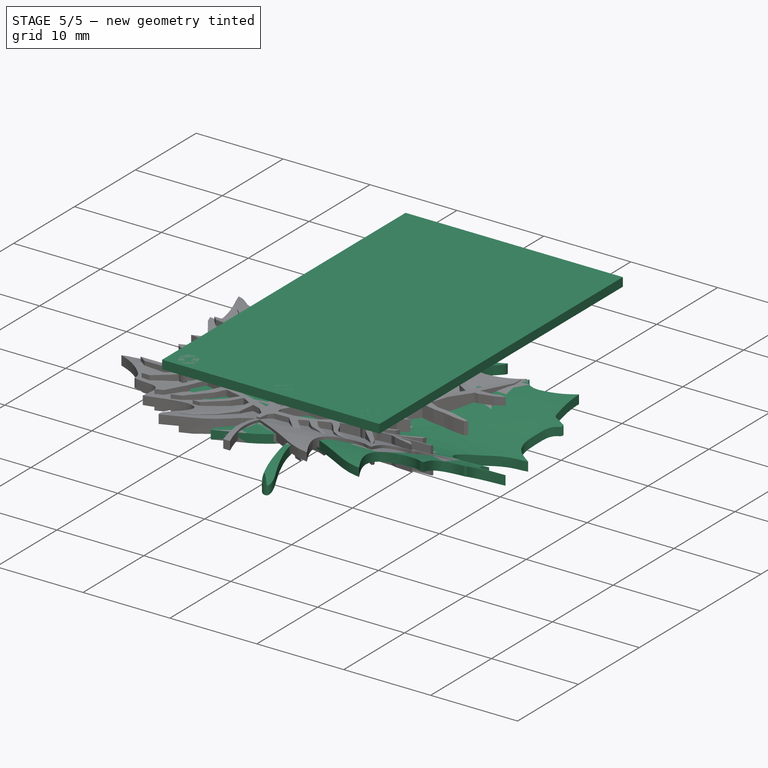
[diagram: stage 5 of 5 — iso view after this stage's code; geometry added in this stage tinted green]
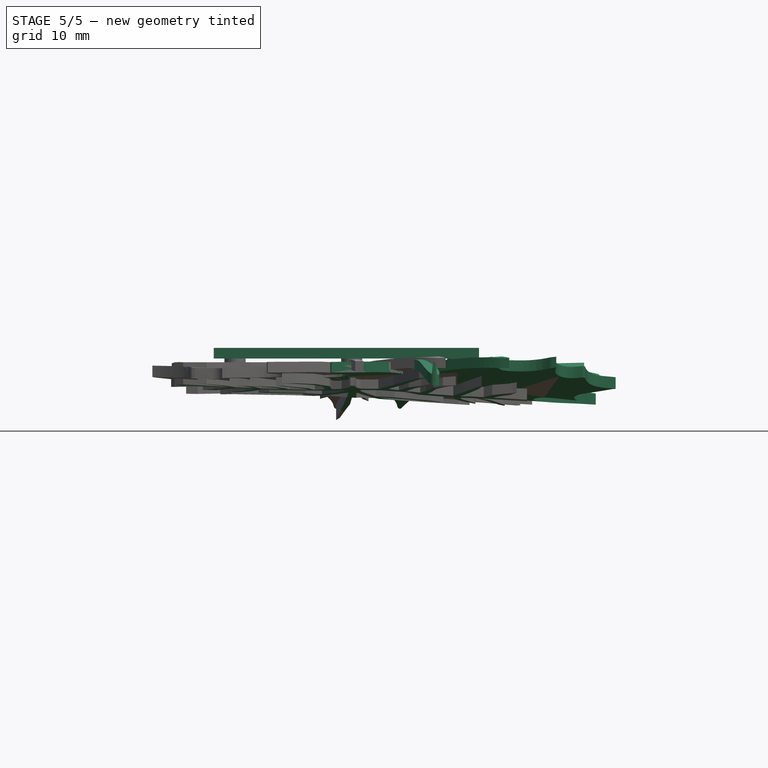
[diagram: stage 5 of 5 — front view after this stage's code; geometry added in this stage tinted green]
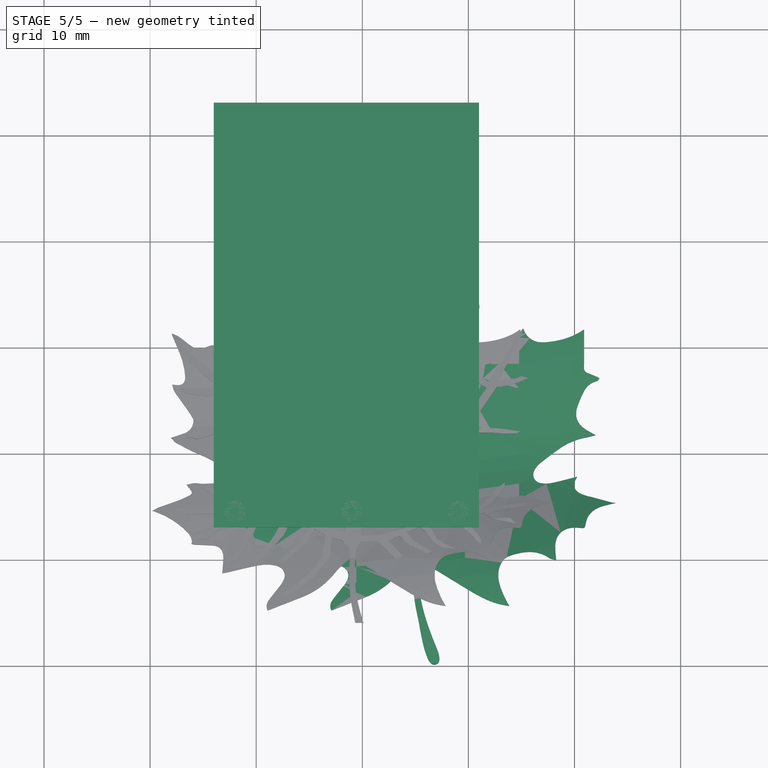
[diagram: stage 5 of 5 — top view after this stage's code; geometry added in this stage tinted green]
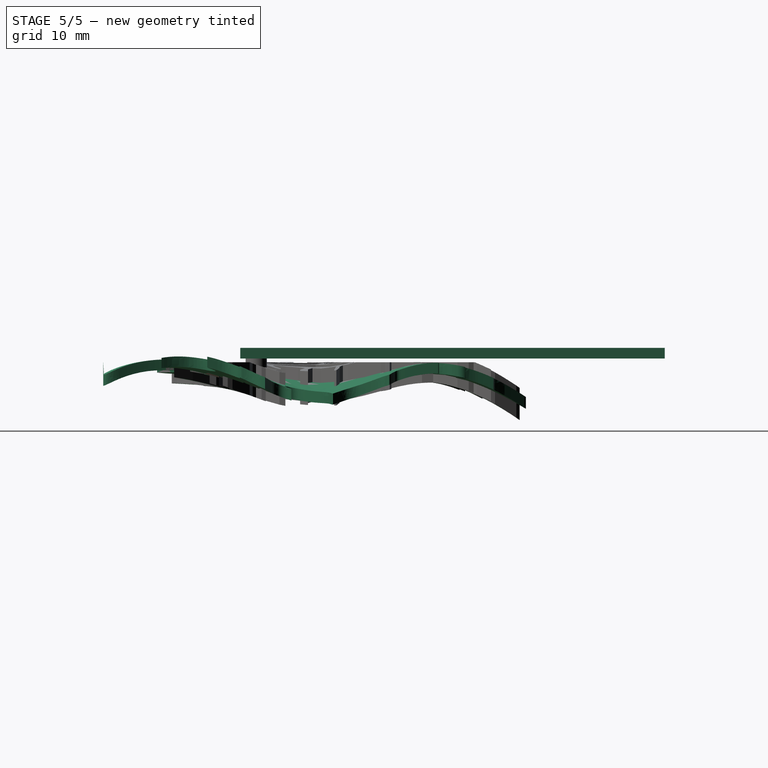
[diagram: stage 5 of 5 — right view after this stage's code; geometry added in this stage tinted green]
FEATURE [PartDesign::FeatureBase] BaseFeature002
  BaseFeature = -> Cut001
FEATURE [PartDesign::Body] Body004
  BaseFeature = -> Gordon002
  Group = -> [BaseFeature004,Pad003]
  Origin = -> Origin004
  Placement = pos=(-4,0,-16) rot=(0,0,1;0rad)
  Tip = -> Pad003
FEATURE [Part::Cut] Cut003
  Base = -> Cut002
  Tool = -> Body004
FEATURE [Sketcher::SketchObject] Sketch007
  FullyConstrained = false
  MapMode = 5
  Support = -> [XY_Plane006]
  sketch-geometry (235):
    g0: LineSegment StartX=19.0785 StartY=-19.6897 StartZ=0 EndX=19.0785 EndY=-27.0179 EndZ=0
    g1: LineSegment StartX=19.0785 StartY=-27.0179 StartZ=0 EndX=21.4276 EndY=-22.9325 EndZ=0
    g2: LineSegment StartX=19.0785 StartY=-19.6897 StartZ=0 EndX=20.7382 EndY=-19.5365 EndZ=0
    g3: LineSegment StartX=20.7382 StartY=-19.5365 StartZ=0 EndX=22.0915 EndY=-18.9492 EndZ=0
    g4: LineSegment StartX=22.0915 StartY=-18.9492 StartZ=0 EndX=23.164 EndY=-17.6725 EndZ=0
    g5: LineSegment StartX=23.164 StartY=-17.6725 StartZ=0 EndX=24.0576 EndY=-16.2426 EndZ=0
    g6: LineSegment StartX=24.0576 StartY=-16.2426 StartZ=0 EndX=25.8706 EndY=-20.1238 EndZ=0
    g7: LineSegment StartX=25.8706 StartY=-20.1238 StartZ=0 EndX=23.164 EndY=-21.094 EndZ=0
    g8: LineSegment StartX=23.164 StartY=-21.094 StartZ=0 EndX=21.683 EndY=-22.2175 EndZ=0
    g9: LineSegment StartX=21.683 StartY=-22.2175 StartZ=0 EndX=21.4276 EndY=-22.9325 EndZ=0
    g10: LineSegment StartX=19.1855 StartY=-20.6363 StartZ=0 EndX=19.1855 EndY=-21.4651 EndZ=0
    g11: LineSegment StartX=19.1855 StartY=-21.4651 StartZ=0 EndX=19.8136 EndY=-20.9277 EndZ=0
    g12: LineSegment StartX=19.8136 StartY=-20.9277 StartZ=0 EndX=19.8136 EndY=-20.4759 EndZ=0
    g13: LineSegment StartX=19.8136 StartY=-20.4759 StartZ=0 EndX=19.1855 EndY=-20.6363 EndZ=0
    g14: LineSegment StartX=20.8148 StartY=-19.8173 StartZ=0 EndX=20.7893 EndY=-20.4302 EndZ=0
    g15: LineSegment StartX=20.7893 StartY=-20.4302 StartZ=0 EndX=21.7085 EndY=-20.1748 EndZ=0
    g16: LineSegment StartX=21.7085 StartY=-20.1748 StartZ=0 EndX=21.5298 EndY=-19.562 EndZ=0
    g17: LineSegment StartX=21.5298 StartY=-19.562 StartZ=0 EndX=20.8148 EndY=-19.8173 EndZ=0
    g18: LineSegment StartX=19.194 StartY=-22.4187 StartZ=0 EndX=19.194 EndY=-23.4911 EndZ=0
    g19: LineSegment StartX=19.194 StartY=-23.4911 StartZ=0 EndX=20.2275 EndY=-23.0857 EndZ=0
    g20: LineSegment StartX=20.2275 StartY=-23.0857 StartZ=0 EndX=19.9977 EndY=-22.0133 EndZ=0
    g21: LineSegment StartX=19.9977 StartY=-22.0133 StartZ=0 EndX=19.194 EndY=-22.4187 EndZ=0
    g22: LineSegment StartX=20.0092 StartY=-21.9931 StartZ=0 EndX=20.2556 EndY=-23.0616 EndZ=0
    g23: LineSegment StartX=20.2556 StartY=-23.0616 StartZ=0 EndX=21.0702 EndY=-22.0388 EndZ=0
    g24: LineSegment StartX=21.0702 StartY=-22.0388 StartZ=0 EndX=20.7852 EndY=-21.5323 EndZ=0
    g25: LineSegment StartX=20.7852 StartY=-21.5323 StartZ=0 EndX=20.0092 EndY=-21.9931 EndZ=0
    g26: LineSegment StartX=19.1868 StartY=-23.5206 StartZ=0 EndX=19.1824 EndY=-24.2922 EndZ=0
    g27: LineSegment StartX=19.1824 StartY=-24.2922 StartZ=0 EndX=20.0233 EndY=-23.9283 EndZ=0
    g28: LineSegment StartX=20.0233 StartY=-23.9283 StartZ=0 EndX=19.8774 EndY=-23.2526 EndZ=0
    g29: LineSegment StartX=19.8774 StartY=-23.2526 StartZ=0 EndX=19.1868 EndY=-23.5206 EndZ=0
    g30: LineSegment StartX=20.5867 StartY=-21.1182 StartZ=0 EndX=20.9452 EndY=-20.902 EndZ=0
    g31: LineSegment StartX=20.9452 StartY=-20.902 StartZ=0 EndX=20.9795 EndY=-20.452 EndZ=0
    g32: LineSegment StartX=20.9795 StartY=-20.452 StartZ=0 EndX=20.457 EndY=-20.6681 EndZ=0
    g33: LineSegment StartX=20.4343 StartY=-21.2232 StartZ=0 EndX=20.5663 EndY=-21.6425 EndZ=0
    g34: LineSegment StartX=20.5663 StartY=-21.6425 StartZ=0 EndX=21.0406 EndY=-21.3644 EndZ=0
    g35: LineSegment StartX=21.0406 StartY=-21.3644 StartZ=0 EndX=20.9121 EndY=-20.931 EndZ=0
    g36: LineSegment StartX=20.9121 StartY=-20.931 StartZ=0 EndX=20.4343 EndY=-21.2232 EndZ=0
    g37: LineSegment StartX=20.799 StartY=-21.5223 StartZ=0 EndX=21.0825 EndY=-22.0326 EndZ=0
    g38: LineSegment StartX=21.0825 StartY=-22.0326 StartZ=0 EndX=21.5397 EndY=-21.7034 EndZ=0
    g39: LineSegment StartX=21.5397 StartY=-21.7034 StartZ=0 EndX=21.2132 EndY=-21.273 EndZ=0
    g40: LineSegment StartX=21.2132 StartY=-21.273 StartZ=0 EndX=20.799 EndY=-21.5223 EndZ=0
    g41: LineSegment StartX=21.6243 StartY=-19.3039 StartZ=0 EndX=21.7319 EndY=-19.7731 EndZ=0
    g42: LineSegment StartX=21.7319 StartY=-19.7731 StartZ=0 EndX=22.2164 EndY=-19.4962 EndZ=0
    g43: LineSegment StartX=22.2164 StartY=-19.4962 StartZ=0 EndX=22.1242 EndY=-19.0655 EndZ=0
    g44: LineSegment StartX=22.1242 StartY=-19.0655 StartZ=0 EndX=21.6243 EndY=-19.3039 EndZ=0
    g45: LineSegment StartX=22.2395 StartY=-18.9655 StartZ=0 EndX=22.3318 EndY=-19.4654 EndZ=0
    g46: LineSegment StartX=22.3318 StartY=-19.4654 StartZ=0 EndX=22.6625 EndY=-19.1809 EndZ=0
    g47: LineSegment StartX=22.6625 StartY=-19.1809 StartZ=0 EndX=22.4472 EndY=-18.7425 EndZ=0
    g48: LineSegment StartX=22.4472 StartY=-18.7425 StartZ=0 EndX=22.2395 EndY=-18.9655 EndZ=0
    g49: LineSegment StartX=21.2936 StartY=-20.3883 StartZ=0 EndX=21.3397 EndY=-20.9343 EndZ=0
    g50: LineSegment StartX=21.3397 StartY=-20.9343 StartZ=0 EndX=21.8319 EndY=-20.7882 EndZ=0
    g51: LineSegment StartX=21.8319 StartY=-20.7882 StartZ=0 EndX=21.6858 EndY=-20.3037 EndZ=0
    g52: LineSegment StartX=21.6858 StartY=-20.3037 StartZ=0 EndX=21.2936 EndY=-20.3883 EndZ=0
    g53: LineSegment StartX=21.7627 StartY=-19.85 StartZ=0 EndX=21.8396 EndY=-20.1499 EndZ=0
    g54: LineSegment StartX=21.8396 StartY=-20.1499 StartZ=0 EndX=22.401 EndY=-19.8807 EndZ=0
    g55: LineSegment StartX=22.401 StartY=-19.8807 StartZ=0 EndX=22.2164 EndY=-19.6192 EndZ=0
    g56: LineSegment StartX=22.2164 StartY=-19.6192 StartZ=0 EndX=21.7627 EndY=-19.85 EndZ=0
    g57: LineSegment StartX=22.4395 StartY=-19.4962 StartZ=0 EndX=22.5087 EndY=-19.8192 EndZ=0
    g58: LineSegment StartX=22.5087 StartY=-19.8192 StartZ=0 EndX=22.8625 EndY=-19.6115 EndZ=0
    g59: LineSegment StartX=22.8625 StartY=-19.6115 StartZ=0 EndX=22.6933 EndY=-19.3193 EndZ=0
    g60: LineSegment StartX=22.6933 StartY=-19.3193 StartZ=0 EndX=22.4395 EndY=-19.4962 EndZ=0
    g61: LineSegment StartX=21.3859 StartY=-21.0574 StartZ=0 EndX=21.4858 EndY=-21.4189 EndZ=0
    g62: LineSegment StartX=21.4858 StartY=-21.4189 StartZ=0 EndX=21.9242 EndY=-21.1728 EndZ=0
    g63: LineSegment StartX=21.9242 StartY=-21.1728 StartZ=0 EndX=21.8088 EndY=-20.8882 EndZ=0
    g64: LineSegment StartX=21.8088 StartY=-20.8882 StartZ=0 EndX=21.3859 EndY=-21.0574 EndZ=0
    g65: LineSegment StartX=19.8919 StartY=-23.2428 StartZ=0 EndX=20.0383 EndY=-23.9218 EndZ=0
    g66: LineSegment StartX=20.0383 StartY=-23.9218 StartZ=0 EndX=20.7225 EndY=-23.4994 EndZ=0
    g67: LineSegment StartX=20.7225 StartY=-23.4994 StartZ=0 EndX=20.3217 EndY=-23.068 EndZ=0
    g68: LineSegment StartX=20.3217 StartY=-23.068 StartZ=0 EndX=19.8919 EndY=-23.2428 EndZ=0
    g69: LineSegment StartX=20.3209 StartY=-23.0299 StartZ=0 EndX=20.6095 EndY=-23.3446 EndZ=0
    g70: LineSegment StartX=20.6095 StartY=-23.3446 StartZ=0 EndX=21.185 EndY=-22.7007 EndZ=0
    g71: LineSegment StartX=21.185 StartY=-22.7007 StartZ=0 EndX=20.7694 EndY=-22.4589 EndZ=0
    g72: LineSegment StartX=20.7694 StartY=-22.4589 StartZ=0 EndX=20.3209 EndY=-23.0299 EndZ=0
    g73: LineSegment StartX=20.7971 StartY=-22.4325 StartZ=0 EndX=21.1267 EndY=-22.6164 EndZ=0
    g74: LineSegment StartX=21.1267 StartY=-22.6164 StartZ=0 EndX=21.3176 EndY=-22.1029 EndZ=0
    g75: LineSegment StartX=21.3176 StartY=-22.1029 StartZ=0 EndX=21.0886 EndY=-22.0647 EndZ=0
    g76: LineSegment StartX=21.0886 StartY=-22.0647 StartZ=0 EndX=20.7971 EndY=-22.4325 EndZ=0
    g77: LineSegment StartX=19.1825 StartY=-24.3148 StartZ=0 EndX=19.1825 EndY=-24.7612 EndZ=0
    g78: LineSegment StartX=19.1825 StartY=-24.7612 StartZ=0 EndX=20.1416 EndY=-24.2819 EndZ=0
    g79: LineSegment StartX=20.1416 StartY=-24.2819 StartZ=0 EndX=20.0132 EndY=-23.9606 EndZ=0
    g80: LineSegment StartX=20.0132 StartY=-23.9606 StartZ=0 EndX=19.1825 EndY=-24.3148 EndZ=0
    g81: LineSegment StartX=21.8445 StartY=-20.2605 StartZ=0 EndX=21.9326 EndY=-20.5502 EndZ=0
    g82: LineSegment StartX=21.9326 StartY=-20.5502 StartZ=0 EndX=22.2727 EndY=-20.3865 EndZ=0
    g83: LineSegment StartX=22.2727 StartY=-20.3865 StartZ=0 EndX=22.1467 EndY=-20.1283 EndZ=0
    g84: LineSegment StartX=22.1467 StartY=-20.1283 StartZ=0 EndX=21.8445 EndY=-20.2605 EndZ=0
    g85: LineSegment StartX=22.3167 StartY=-20.0402 StartZ=0 EndX=22.4175 EndY=-20.3298 EndZ=0
    g86: LineSegment StartX=22.4175 StartY=-20.3298 StartZ=0 EndX=22.726 EndY=-20.1598 EndZ=0
    g87: LineSegment StartX=22.726 StartY=-20.1598 StartZ=0 EndX=22.5812 EndY=-19.9016 EndZ=0
    g88: LineSegment StartX=22.5812 StartY=-19.9016 StartZ=0 EndX=22.3167 EndY=-20.0402 EndZ=0
    g89: LineSegment StartX=22.7638 StartY=-19.8576 StartZ=0 EndX=22.8708 EndY=-20.0968 EndZ=0
    g90: LineSegment StartX=22.8708 StartY=-20.0968 StartZ=0 EndX=23.0849 EndY=-19.8953 EndZ=0
    g91: LineSegment StartX=23.0849 StartY=-19.8953 StartZ=0 EndX=22.9464 EndY=-19.719 EndZ=0
    g92: LineSegment StartX=22.9464 StartY=-19.719 StartZ=0 EndX=22.7638 EndY=-19.8576 EndZ=0
    g93: LineSegment StartX=21.1233 StartY=-22.0439 StartZ=0 EndX=21.3558 EndY=-22.0682 EndZ=0
    g94: LineSegment StartX=21.3558 StartY=-22.0682 StartZ=0 EndX=21.6576 EndY=-21.8114 EndZ=0
    g95: LineSegment StartX=21.6576 StartY=-21.8114 StartZ=0 EndX=21.5466 EndY=-21.7281 EndZ=0
    g96: LineSegment StartX=21.5466 StartY=-21.7281 StartZ=0 EndX=21.1233 EndY=-22.0439 EndZ=0
    g97: LineSegment StartX=21.9881 StartY=-20.6818 StartZ=0 EndX=22.0914 EndY=-21.0951 EndZ=0
    g98: LineSegment StartX=22.0914 StartY=-21.0951 StartZ=0 EndX=22.4202 EndY=-20.8509 EndZ=0
    g99: LineSegment StartX=22.4202 StartY=-20.8509 StartZ=0 EndX=22.2886 EndY=-20.5691 EndZ=0
    g100: LineSegment StartX=22.2886 StartY=-20.5691 StartZ=0 EndX=21.9881 EndY=-20.6818 EndZ=0
    g101: LineSegment StartX=22.1008 StartY=-21.2266 StartZ=0 EndX=22.2511 EndY=-21.4615 EndZ=0
    g102: LineSegment StartX=22.2511 StartY=-21.4615 StartZ=0 EndX=22.5986 EndY=-21.1233 EndZ=0
    g103: LineSegment StartX=22.5986 StartY=-21.1233 StartZ=0 EndX=22.4483 EndY=-20.9918 EndZ=0
    g104: LineSegment StartX=22.4483 StartY=-20.9918 StartZ=0 EndX=22.1008 EndY=-21.2266 EndZ=0
    g105: LineSegment StartX=19.1777 StartY=-21.5066 StartZ=0 EndX=19.1777 EndY=-22.4084 EndZ=0
    g106: LineSegment StartX=19.1777 StartY=-22.4084 StartZ=0 EndX=19.9629 EndY=-22.01 EndZ=0
    g107: LineSegment StartX=19.9629 StartY=-22.01 StartZ=0 EndX=19.79 EndY=-20.9636 EndZ=0
    g108: LineSegment StartX=19.79 StartY=-20.9636 StartZ=0 EndX=19.1777 EndY=-21.5066 EndZ=0
    g109: LineSegment StartX=19.8036 StartY=-20.9592 StartZ=0 EndX=19.9002 EndY=-21.5211 EndZ=0
    g110: LineSegment StartX=19.9002 StartY=-21.5211 StartZ=0 EndX=20.5733 EndY=-21.1259 EndZ=0
    g111: LineSegment StartX=20.5733 StartY=-21.1259 StartZ=0 EndX=20.4445 EndY=-20.673 EndZ=0
    g112: LineSegment StartX=20.4445 StartY=-20.673 StartZ=0 EndX=19.8036 EndY=-20.9592 EndZ=0
    g113: LineSegment StartX=19.8973 StartY=-21.54 StartZ=0 EndX=19.9802 EndY=-21.9916 EndZ=0
    g114: LineSegment StartX=19.9802 StartY=-21.9916 StartZ=0 EndX=20.5539 EndY=-21.6529 EndZ=0
    g115: LineSegment StartX=20.5539 StartY=-21.6529 StartZ=0 EndX=20.4191 EndY=-21.2325 EndZ=0
    g116: LineSegment StartX=20.4191 StartY=-21.2325 StartZ=0 EndX=19.8973 EndY=-21.54 EndZ=0
    g117: LineSegment StartX=22.4671 StartY=-20.4939 StartZ=0 EndX=22.5798 EndY=-20.8133 EndZ=0
    g118: LineSegment StartX=22.5798 StartY=-20.8133 StartZ=0 EndX=22.8523 EndY=-20.6161 EndZ=0
    g119: LineSegment StartX=22.8523 StartY=-20.6161 StartZ=0 EndX=22.7489 EndY=-20.2967 EndZ=0
    g120: LineSegment StartX=22.7489 StartY=-20.2967 StartZ=0 EndX=22.4671 EndY=-20.4939 EndZ=0
    g121: LineSegment StartX=22.9368 StartY=-20.2027 StartZ=0 EndX=23.1434 EndY=-20.7757 EndZ=0
    g122: LineSegment StartX=23.1434 StartY=-20.7757 StartZ=0 EndX=23.6319 EndY=-20.5691 EndZ=0
    g123: LineSegment StartX=23.6319 StartY=-20.5691 StartZ=0 EndX=23.228 EndY=-20.0055 EndZ=0
    g124: LineSegment StartX=23.228 StartY=-20.0055 StartZ=0 EndX=22.9368 EndY=-20.2027 EndZ=0
    g125: LineSegment StartX=22.6268 StartY=-20.8697 StartZ=0 EndX=22.7113 EndY=-21.0388 EndZ=0
    g126: LineSegment StartX=22.7113 StartY=-21.0388 StartZ=0 EndX=22.965 EndY=-20.8321 EndZ=0
    g127: LineSegment StartX=22.965 StartY=-20.8321 StartZ=0 EndX=22.8616 EndY=-20.7006 EndZ=0
    g128: LineSegment StartX=22.8616 StartY=-20.7006 StartZ=0 EndX=22.6268 EndY=-20.8697 EndZ=0
    g129: LineSegment StartX=22.5798 StartY=-18.6998 StartZ=0 EndX=22.8147 EndY=-19.1601 EndZ=0
    g130: LineSegment StartX=22.8147 StartY=-19.1601 StartZ=0 EndX=23.2656 EndY=-18.7655 EndZ=0
    g131: LineSegment StartX=23.2656 StartY=-18.7655 StartZ=0 EndX=22.8898 EndY=-18.2771 EndZ=0
    g132: LineSegment StartX=22.8898 StartY=-18.2771 StartZ=0 EndX=22.5798 EndY=-18.6998 EndZ=0
    g133: LineSegment StartX=23.0777 StartY=-18.1362 StartZ=0 EndX=23.4253 EndY=-18.634 EndZ=0
    g134: LineSegment StartX=23.4253 StartY=-18.634 StartZ=0 EndX=23.8855 EndY=-18.0892 EndZ=0
    g135: LineSegment StartX=23.8855 StartY=-18.0892 StartZ=0 EndX=23.4816 EndY=-17.7511 EndZ=0
    g136: LineSegment StartX=23.4816 StartY=-17.7511 StartZ=0 EndX=23.0777 EndY=-18.1362 EndZ=0
    g137: LineSegment StartX=22.918 StartY=-19.3291 StartZ=0 EndX=23.1059 EndY=-19.5734 EndZ=0
    g138: LineSegment StartX=23.1059 StartY=-19.5734 StartZ=0 EndX=23.3783 EndY=-19.301 EndZ=0
    g139: LineSegment StartX=23.3783 StartY=-19.301 StartZ=0 EndX=23.1059 EndY=-19.0755 EndZ=0
    g140: LineSegment StartX=23.1059 StartY=-19.0755 StartZ=0 EndX=22.918 EndY=-19.3291 EndZ=0
    g141: LineSegment StartX=19.1858 StartY=-24.7886 StartZ=0 EndX=19.1858 EndY=-25.0851 EndZ=0
    g142: LineSegment StartX=19.1858 StartY=-25.0851 StartZ=0 EndX=19.5286 EndY=-24.9021 EndZ=0
    g143: LineSegment StartX=19.5286 StartY=-24.9021 StartZ=0 EndX=19.5008 EndY=-24.6264 EndZ=0
    g144: LineSegment StartX=19.5008 StartY=-24.6264 StartZ=0 EndX=19.1858 EndY=-24.7886 EndZ=0
    g145: LineSegment StartX=19.1695 StartY=-26.2104 StartZ=0 EndX=19.1695 EndY=-26.7177 EndZ=0
    g146: LineSegment StartX=19.1695 StartY=-26.7177 StartZ=0 EndX=19.3734 EndY=-26.2521 EndZ=0
    g147: LineSegment StartX=19.3734 StartY=-26.2521 StartZ=0 EndX=19.1695 EndY=-26.2104 EndZ=0
    g148: LineSegment StartX=19.1649 StartY=-25.8977 StartZ=0 EndX=19.1649 EndY=-26.1919 EndZ=0
    g149: LineSegment StartX=19.1649 StartY=-26.1919 StartZ=0 EndX=19.3826 EndY=-26.2382 EndZ=0
    g150: LineSegment StartX=19.3826 StartY=-26.2382 StartZ=0 EndX=19.5008 EndY=-25.9556 EndZ=0
    g151: LineSegment StartX=19.5008 StartY=-25.9556 StartZ=0 EndX=19.1649 EndY=-25.8977 EndZ=0
    g152: LineSegment StartX=19.1707 StartY=-25.5101 StartZ=0 EndX=19.1707 EndY=-25.8831 EndZ=0
    g153: LineSegment StartX=19.1707 StartY=-25.8831 StartZ=0 EndX=19.3919 EndY=-25.9236 EndZ=0
    g154: LineSegment StartX=19.3919 StartY=-25.9236 StartZ=0 EndX=19.378 EndY=-25.5275 EndZ=0
    g155: LineSegment StartX=19.378 StartY=-25.5275 StartZ=0 EndX=19.1707 EndY=-25.5101 EndZ=0
    g156: LineSegment StartX=19.4058 StartY=-25.9236 StartZ=0 EndX=19.5054 EndY=-25.9375 EndZ=0
    g157: LineSegment StartX=19.5054 StartY=-25.9375 StartZ=0 EndX=19.5633 EndY=-25.7916 EndZ=0
    g158: LineSegment StartX=19.4058 StartY=-25.9236 StartZ=0 EndX=19.3942 EndY=-25.5275 EndZ=0
    g159: LineSegment StartX=19.3942 StartY=-25.5275 StartZ=0 EndX=19.7232 EndY=-25.5646 EndZ=0
    g160: LineSegment StartX=19.7232 StartY=-25.5646 StartZ=0 EndX=19.5633 EndY=-25.7916 EndZ=0
    g161: LineSegment StartX=20.5867 StartY=-21.1182 StartZ=0 EndX=20.457 EndY=-20.6681 EndZ=0
    g162: LineSegment StartX=19.1775 StartY=-25.1036 StartZ=0 EndX=19.1767 EndY=-25.4852 EndZ=0
    g163: LineSegment StartX=19.1767 StartY=-25.4852 StartZ=0 EndX=19.378 EndY=-25.5171 EndZ=0
    g164: LineSegment StartX=19.378 StartY=-25.5171 StartZ=0 EndX=19.3852 EndY=-24.9935 EndZ=0
    g165: LineSegment StartX=19.3852 StartY=-24.9935 StartZ=0 EndX=19.1775 EndY=-25.1036 EndZ=0
    g166: LineSegment StartX=19.4129 StartY=-24.9997 StartZ=0 EndX=19.4079 EndY=-25.2987 EndZ=0
    g167: LineSegment StartX=19.4079 StartY=-25.2987 StartZ=0 EndX=19.6967 EndY=-25.2266 EndZ=0
    g168: LineSegment StartX=19.6967 StartY=-25.2266 StartZ=0 EndX=19.7156 EndY=-24.83 EndZ=0
    g169: LineSegment StartX=19.7156 StartY=-24.83 StartZ=0 EndX=19.4129 EndY=-24.9997 EndZ=0
    g170: LineSegment StartX=19.398 StartY=-25.3255 StartZ=0 EndX=19.405 EndY=-25.5184 EndZ=0
    g171: LineSegment StartX=19.405 StartY=-25.5184 StartZ=0 EndX=19.7186 EndY=-25.5624 EndZ=0
    g172: LineSegment StartX=19.7186 StartY=-25.5624 StartZ=0 EndX=20.0078 EndY=-25.178 EndZ=0
    g173: LineSegment StartX=20.0078 StartY=-25.178 StartZ=0 EndX=19.398 EndY=-25.3255 EndZ=0
    g174: LineSegment StartX=19.7246 StartY=-24.8112 StartZ=0 EndX=19.7093 EndY=-25.221 EndZ=0
    g175: LineSegment StartX=19.7093 StartY=-25.221 StartZ=0 EndX=19.9557 EndY=-25.1623 EndZ=0
    g176: LineSegment StartX=19.9557 StartY=-25.1623 StartZ=0 EndX=19.9557 EndY=-24.7398 EndZ=0
    g177: LineSegment StartX=19.9557 StartY=-24.7398 StartZ=0 EndX=19.7246 EndY=-24.8112 EndZ=0
    g178: LineSegment StartX=19.9672 StartY=-24.958 StartZ=0 EndX=19.9672 EndY=-25.1597 EndZ=0
    g179: LineSegment StartX=19.9672 StartY=-25.1597 StartZ=0 EndX=20.0213 EndY=-25.1418 EndZ=0
    g180: LineSegment StartX=20.0213 StartY=-25.1418 StartZ=0 EndX=20.1502 EndY=-24.958 EndZ=0
    g181: LineSegment StartX=20.1502 StartY=-24.958 StartZ=0 EndX=19.9672 EndY=-24.958 EndZ=0
    g182: LineSegment StartX=19.9685 StartY=-24.7398 StartZ=0 EndX=19.9685 EndY=-24.9409 EndZ=0
    g183: LineSegment StartX=19.9685 StartY=-24.9409 StartZ=0 EndX=20.1566 EndY=-24.9409 EndZ=0
    g184: LineSegment StartX=20.1566 StartY=-24.9409 StartZ=0 EndX=20.3238 EndY=-24.7111 EndZ=0
    g185: LineSegment StartX=20.3238 StartY=-24.7111 StartZ=0 EndX=19.9685 EndY=-24.7398 EndZ=0
    g186: LineSegment StartX=19.5166 StartY=-24.6159 StartZ=0 EndX=19.5421 EndY=-24.8993 EndZ=0
    g187: LineSegment StartX=19.5421 StartY=-24.8993 StartZ=0 EndX=19.7387 EndY=-24.7934 EndZ=0
    g188: LineSegment StartX=19.7387 StartY=-24.7934 StartZ=0 EndX=19.7004 EndY=-24.5253 EndZ=0
    g189: LineSegment StartX=19.7004 StartY=-24.5253 StartZ=0 EndX=19.5166 EndY=-24.6159 EndZ=0
    g190: LineSegment StartX=19.7144 StartY=-24.5176 StartZ=0 EndX=19.7515 EndY=-24.7908 EndZ=0
    g191: LineSegment StartX=19.7515 StartY=-24.7908 StartZ=0 EndX=19.9519 EndY=-24.7283 EndZ=0
    g192: LineSegment StartX=19.9519 StartY=-24.7283 StartZ=0 EndX=19.9378 EndY=-24.4015 EndZ=0
    g193: LineSegment StartX=19.9378 StartY=-24.4015 StartZ=0 EndX=19.7144 EndY=-24.5176 EndZ=0
    g194: LineSegment StartX=19.9531 StartY=-24.3977 StartZ=0 EndX=19.9595 EndY=-24.5738 EndZ=0
    g195: LineSegment StartX=19.9595 StartY=-24.5738 StartZ=0 EndX=20.2315 EndY=-24.4651 EndZ=0
    g196: LineSegment StartX=20.2315 StartY=-24.4651 StartZ=0 EndX=20.1944 EndY=-24.2866 EndZ=0
    g197: LineSegment StartX=20.1944 StartY=-24.2866 StartZ=0 EndX=19.9531 EndY=-24.3977 EndZ=0
    g198: LineSegment StartX=20.0407 StartY=-23.955 StartZ=0 EndX=20.1656 EndY=-24.2777 EndZ=0
    g199: LineSegment StartX=20.1656 StartY=-24.2777 StartZ=0 EndX=20.5057 EndY=-24.0765 EndZ=0
    g200: LineSegment StartX=20.5057 StartY=-24.0765 StartZ=0 EndX=20.3842 EndY=-23.7399 EndZ=0
    g201: LineSegment StartX=20.3842 StartY=-23.7399 StartZ=0 EndX=20.0407 EndY=-23.955 EndZ=0
    g202: LineSegment StartX=19.9817 StartY=-24.5969 StartZ=0 EndX=19.9713 EndY=-24.708 EndZ=0
    g203: LineSegment StartX=19.9713 StartY=-24.708 StartZ=0 EndX=20.3356 EndY=-24.6872 EndZ=0
    g204: LineSegment StartX=20.3356 StartY=-24.6872 StartZ=0 EndX=20.5508 EndY=-24.3749 EndZ=0
    g205: LineSegment StartX=20.5508 StartY=-24.3749 StartZ=0 EndX=19.9817 EndY=-24.5969 EndZ=0
    g206: LineSegment StartX=20.2315 StartY=-24.2604 StartZ=0 EndX=20.2558 EndY=-24.4651 EndZ=0
    g207: LineSegment StartX=20.2558 StartY=-24.4651 StartZ=0 EndX=20.5785 EndY=-24.3367 EndZ=0
    g208: LineSegment StartX=20.5785 StartY=-24.3367 StartZ=0 EndX=20.7798 EndY=-23.9446 EndZ=0
    g209: LineSegment StartX=20.7798 StartY=-23.9446 StartZ=0 EndX=20.2315 EndY=-24.2604 EndZ=0
    g210: LineSegment StartX=20.4328 StartY=-23.7233 StartZ=0 EndX=20.5334 EndY=-24.0529 EndZ=0
    g211: LineSegment StartX=20.5334 StartY=-24.0529 StartZ=0 EndX=20.7867 EndY=-23.9037 EndZ=0
    g212: LineSegment StartX=20.7867 StartY=-23.9037 StartZ=0 EndX=21.0088 EndY=-23.3659 EndZ=0
    g213: LineSegment StartX=21.0088 StartY=-23.3659 StartZ=0 EndX=20.4328 EndY=-23.7233 EndZ=0
    g214: LineSegment StartX=20.6375 StartY=-23.3624 StartZ=0 EndX=20.7416 EndY=-23.4873 EndZ=0
    g215: LineSegment StartX=20.7416 StartY=-23.4873 StartZ=0 EndX=21.04 EndY=-23.3104 EndZ=0
    g216: LineSegment StartX=21.04 StartY=-23.3104 StartZ=0 EndX=20.9637 EndY=-23.0015 EndZ=0
    g217: LineSegment StartX=20.9637 StartY=-23.0015 StartZ=0 EndX=20.6375 EndY=-23.3624 EndZ=0
    g218: LineSegment StartX=20.9949 StartY=-22.9669 StartZ=0 EndX=21.0678 EndY=-23.2791 EndZ=0
    g219: LineSegment StartX=21.0678 StartY=-23.2791 StartZ=0 EndX=21.2898 EndY=-22.7934 EndZ=0
    g220: LineSegment StartX=21.2898 StartY=-22.7934 StartZ=0 EndX=21.21 EndY=-22.7344 EndZ=0
    g221: LineSegment StartX=21.21 StartY=-22.7344 StartZ=0 EndX=20.9949 EndY=-22.9669 EndZ=0
    g222: LineSegment StartX=21.1545 StartY=-22.6338 StartZ=0 EndX=21.2968 EndY=-22.7448 EndZ=0
    g223: LineSegment StartX=21.2968 StartY=-22.7448 StartZ=0 EndX=21.3905 EndY=-22.5331 EndZ=0
    g224: LineSegment StartX=21.3905 StartY=-22.5331 StartZ=0 EndX=21.2204 EndY=-22.4429 EndZ=0
    g225: LineSegment StartX=21.2204 StartY=-22.4429 StartZ=0 EndX=21.1545 EndY=-22.6338 EndZ=0
    g226: LineSegment StartX=21.3627 StartY=-22.1202 StartZ=0 EndX=21.2308 EndY=-22.4117 EndZ=0
    g227: LineSegment StartX=21.2308 StartY=-22.4117 StartZ=0 EndX=21.3974 EndY=-22.5054 EndZ=0
    g228: LineSegment StartX=21.3974 StartY=-22.5054 StartZ=0 EndX=21.4876 EndY=-22.3041 EndZ=0
    g229: LineSegment StartX=21.4876 StartY=-22.3041 StartZ=0 EndX=21.5848 EndY=-22.2104 EndZ=0
    g230: LineSegment StartX=21.5848 StartY=-22.2104 StartZ=0 EndX=21.3627 EndY=-22.1202 EndZ=0
    g231: LineSegment StartX=21.3835 StartY=-22.089 StartZ=0 EndX=21.5986 EndY=-22.1896 EndZ=0
    g232: LineSegment StartX=21.5986 StartY=-22.1896 StartZ=0 EndX=21.8797 EndY=-21.9641 EndZ=0
    g233: LineSegment StartX=21.8797 StartY=-21.9641 StartZ=0 EndX=21.6854 EndY=-21.8288 EndZ=0
    g234: LineSegment StartX=21.6854 StartY=-21.8288 StartZ=0 EndX=21.3835 EndY=-22.089 EndZ=0
  constraints (249):
    c: Coincident(g0,g1)
    c: Coincident(g0,g2)
    c: Coincident(g2,g3)
    c: Coincident(g3,g4)
    c: Coincident(g4,g5)
    c: Coincident(g5,g6)
    c: Coincident(g6,g7)
    c: Coincident(g7,g8)
    c: Coincident(g8,g9)
    c: Coincident(g9,g1)
    c: Vertical(g10)
    c: Coincident(g10,g11)
    c: Coincident(g11,g12)
    c: Vertical(g12)
    c: Coincident(g12,g13)
    c: Coincident(g13,g10)
    c: Coincident(g14,g15)
    c: Coincident(g15,g16)
    c: Coincident(g16,g17)
    c: Coincident(g17,g14)
    c: Vertical(g18)
    c: Coincident(g18,g19)
    c: Coincident(g19,g20)
    c: Coincident(g20,g21)
    c: Coincident(g21,g18)
    c: Coincident(g22,g23)
    c: Coincident(g23,g24)
    c: Coincident(g24,g25)
    c: Coincident(g25,g22)
    c: Coincident(g26,g27)
    c: Coincident(g27,g28)
    c: Coincident(g28,g29)
    c: Coincident(g29,g26)
    c: Coincident(g30,g31)
    c: Coincident(g31,g32)
    c: Coincident(g33,g34)
    c: Coincident(g34,g35)
    c: Coincident(g35,g36)
    c: Coincident(g36,g33)
    c: Coincident(g37,g38)
    c: Coincident(g38,g39)
    c: Coincident(g39,g40)
    c: Coincident(g40,g37)
    c: Coincident(g41,g42)
    c: Coincident(g42,g43)
    c: Coincident(g43,g44)
    c: Coincident(g44,g41)
    c: Coincident(g45,g46)
    c: Coincident(g46,g47)
    c: Coincident(g47,g48)
    c: Coincident(g48,g45)
    c: Coincident(g49,g50)
    c: Coincident(g50,g51)
    c: Coincident(g51,g52)
    c: Coincident(g52,g49)
    c: Coincident(g53,g54)
    c: Coincident(g54,g55)
    c: Coincident(g55,g56)
    c: Coincident(g56,g53)
    c: Coincident(g57,g58)
    c: Coincident(g58,g59)
    c: Coincident(g59,g60)
    c: Coincident(g60,g57)
    c: Coincident(g61,g62)
    c: Coincident(g62,g63)
    c: Coincident(g63,g64)
    c: Coincident(g64,g61)
    c: Coincident(g65,g66)
    c: Coincident(g66,g67)
    c: Coincident(g67,g68)
    c: Coincident(g68,g65)
    c: Coincident(g69,g70)
    c: Coincident(g70,g71)
    c: Coincident(g71,g72)
    c: Coincident(g72,g69)
    c: Coincident(g73,g74)
    c: Coincident(g74,g75)
    c: Coincident(g75,g76)
    c: Coincident(g76,g73)
    c: Vertical(g77)
    c: Coincident(g77,g78)
    c: Coincident(g78,g79)
    c: Coincident(g79,g80)
    c: Coincident(g80,g77)
    c: Coincident(g81,g82)
    c: Coincident(g82,g83)
    c: Coincident(g83,g84)
    c: Coincident(g84,g81)
    c: Coincident(g85,g86)
    c: Coincident(g86,g87)
    c: Coincident(g87,g88)
    c: Coincident(g88,g85)
    c: Coincident(g89,g90)
    c: Coincident(g90,g91)
    c: Coincident(g91,g92)
    c: Coincident(g92,g89)
    c: Coincident(g93,g94)
    c: Coincident(g94,g95)
    c: Coincident(g95,g96)
    c: Coincident(g96,g93)
    c: Coincident(g97,g98)
    c: Coincident(g98,g99)
    c: Coincident(g99,g100)
    c: Coincident(g100,g97)
    c: Coincident(g101,g102)
    c: Coincident(g102,g103)
    c: Coincident(g103,g104)
    c: Coincident(g104,g101)
    c: Vertical(g105)
    c: Coincident(g105,g106)
    c: Coincident(g106,g107)
    c: Coincident(g107,g108)
    c: Coincident(g108,g105)
    c: Coincident(g109,g110)
    c: Coincident(g110,g111)
    c: Coincident(g111,g112)
    c: Coincident(g112,g109)
    c: Coincident(g113,g114)
    c: Coincident(g114,g115)
    c: Coincident(g115,g116)
    c: Coincident(g116,g113)
    c: Coincident(g117,g118)
    c: Coincident(g118,g119)
    c: Coincident(g119,g120)
    c: Coincident(g120,g117)
    c: Coincident(g121,g122)
    c: Coincident(g122,g123)
    c: Coincident(g123,g124)
    c: Coincident(g124,g121)
    c: Coincident(g125,g126)
    c: Coincident(g126,g127)
    c: Coincident(g127,g128)
    c: Coincident(g128,g125)
    c: Coincident(g129,g130)
    c: Coincident(g130,g131)
    c: Coincident(g131,g132)
    c: Coincident(g132,g129)
    c: Coincident(g133,g134)
    c: Coincident(g134,g135)
    c: Coincident(g135,g136)
    c: Coincident(g136,g133)
    c: Coincident(g137,g138)
    c: Coincident(g138,g139)
    c: Coincident(g139,g140)
    c: Coincident(g140,g137)
    c: Vertical(g141)
    c: Coincident(g141,g142)
    c: Coincident(g142,g143)
    c: Coincident(g143,g144)
    c: Coincident(g144,g141)
    c: Vertical(g145)
    c: Coincident(g145,g146)
    c: Coincident(g146,g147)
    c: Coincident(g147,g145)
    c: Vertical(g148)
    c: Coincident(g148,g149)
    c: Coincident(g149,g150)
    c: Coincident(g150,g151)
    c: Coincident(g151,g148)
    c: Vertical(g152)
    c: Coincident(g152,g153)
    c: Coincident(g153,g154)
    c: Coincident(g154,g155)
    c: Coincident(g155,g152)
    c: Coincident(g156,g157)
    c: Coincident(g156,g158)
    c: Coincident(g158,g159)
    c: Coincident(g159,g160)
    c: Coincident(g160,g157)
    c: Coincident(g30,g161)
    c: Coincident(g161,g32)
    c: Coincident(g162,g163)
    c: Coincident(g163,g164)
    c: Coincident(g164,g165)
    c: Coincident(g165,g162)
    c: Coincident(g166,g167)
    c: Coincident(g167,g168)
    c: Coincident(g168,g169)
    c: Coincident(g169,g166)
    c: Coincident(g170,g171)
    c: Coincident(g171,g172)
    c: Coincident(g172,g173)
    c: Coincident(g173,g170)
    c: Coincident(g174,g175)
    c: Coincident(g175,g176)
    c: Vertical(g176)
    c: Coincident(g176,g177)
    c: Coincident(g177,g174)
    c: Vertical(g178)
    c: Coincident(g178,g179)
    c: Coincident(g179,g180)
    c: Coincident(g180,g181)
    c: Coincident(g181,g178)
    c: Horizontal(g181)
    c: Vertical(g182)
    c: Coincident(g182,g183)
    c: Horizontal(g183)
    c: Coincident(g183,g184)
    c: Coincident(g184,g185)
    c: Coincident(g185,g182)
    c: Coincident(g186,g187)
    c: Coincident(g187,g188)
    c: Coincident(g188,g189)
    c: Coincident(g189,g186)
    c: Coincident(g190,g191)
    c: Coincident(g191,g192)
    c: Coincident(g192,g193)
    c: Coincident(g193,g190)
    c: Coincident(g194,g195)
    c: Coincident(g195,g196)
    c: Coincident(g196,g197)
    c: Coincident(g197,g194)
    c: Coincident(g198,g199)
    c: Coincident(g199,g200)
    c: Coincident(g200,g201)
    c: Coincident(g201,g198)
    c: Coincident(g202,g203)
    c: Coincident(g203,g204)
    c: Coincident(g204,g205)
    c: Coincident(g205,g202)
    c: Coincident(g206,g207)
    c: Coincident(g207,g208)
    c: Coincident(g208,g209)
    c: Coincident(g209,g206)
    c: Coincident(g210,g211)
    c: Coincident(g211,g212)
    c: Coincident(g212,g213)
    c: Coincident(g213,g210)
    c: Coincident(g214,g215)
    c: Coincident(g215,g216)
    c: Coincident(g216,g217)
    c: Coincident(g217,g214)
    c: Coincident(g218,g219)
    c: Coincident(g219,g220)
    c: Coincident(g220,g221)
    c: Coincident(g221,g218)
    c: Coincident(g222,g223)
    c: Coincident(g223,g224)
    c: Coincident(g224,g225)
    c: Coincident(g225,g222)
    c: Coincident(g226,g227)
    c: Coincident(g227,g228)
    c: Coincident(g228,g229)
    c: Coincident(g229,g230)
    c: Coincident(g230,g226)
    c: Coincident(g231,g232)
    c: Coincident(g232,g233)
    c: Coincident(g233,g234)
    c: Coincident(g234,g231)
FEATURE [PartDesign::Body] Body005
  Group = -> [Sketch007]
  Origin = -> Origin005
FEATURE [Part::Extrusion] Extrude002
  Base = -> Sketch007
  Dir = (0,0,1)
  DirMode = 2
  FaceMakerClass = Part::FaceMakerBullseye
  LengthFwd = 0.6
  LengthRev = 0
  Placement = pos=(0,0,-4) rot=(0,0,1;0rad)
  Solid = true
  Symmetric = false
FEATURE [Part::Box] Box  label="Cube"
  AttacherType = Attacher::AttachEngine3D
  Height = 1
  Length = 25
  Placement = pos=(6,-27,-2) rot=(0,0,1;0rad)
  Width = 40
FEATURE [App::MeasureDistance] Distance  label="Distance: 0.9063 mm"
  Distance = 0.906271
  P1 = (32.2414,-9.38444,-3.35473)
  P2 = (32.2711,-9.3794,-2.44896)
FEATURE [App::MeasureDistance] Distance001  label="Distance: 0.8906 mm"
  Distance = 0.890588
  P1 = (34.9009,-11.1843,-2.89424)
  P2 = (34.902,-11.1085,-3.78159)
FEATURE [App::MeasureDistance] Distance002  label="Distance: 2.7071 mm"
  Distance = 2.70705
  P1 = (18.2037,-24.8996,-3.69141)
  P2 = (18.4113,-24.6963,-1)
FEATURE [App::MeasureDistance] Distance003  label="Distance: 0.9195 mm"
  Distance = 0.919503
  P1 = (13.0189,-34.0863,-2.30784)
  P2 = (13.0192,-34.0862,-3.22734)
FEATURE [App::MeasureDistance] Distance004  label="Distance: 0.8050 mm"
  Distance = 0.804962
  P1 = (25.0249,-24.0973,-5.8441)
  P2 = (24.9647,-24.1259,-5.04189)
FEATURE [Part::Compound] Compound
  Links = -> [Cut003,Cut004,Cut005,Cut006,Cut007]
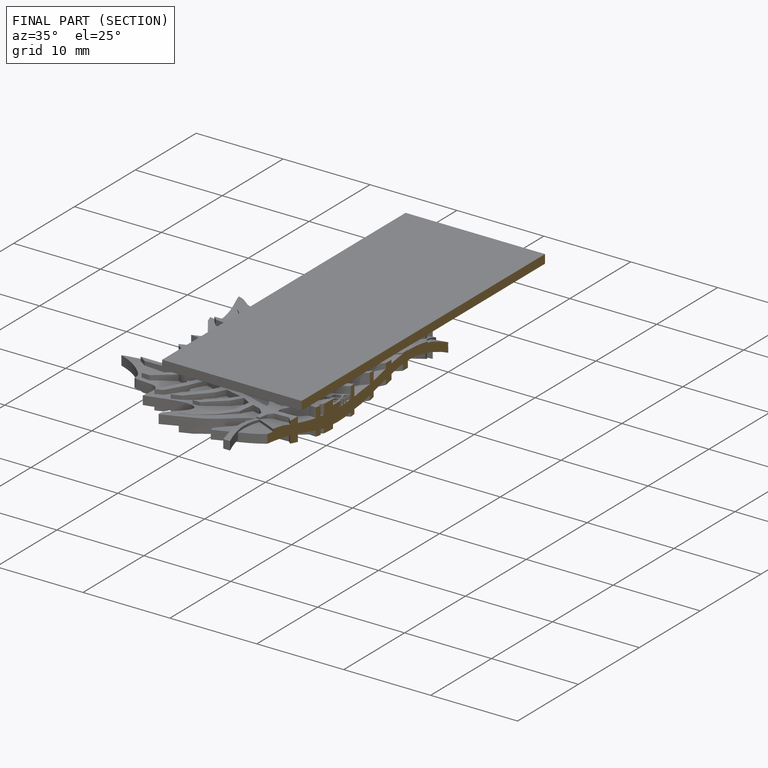
[diagram: finished part — half-section view (interior)]
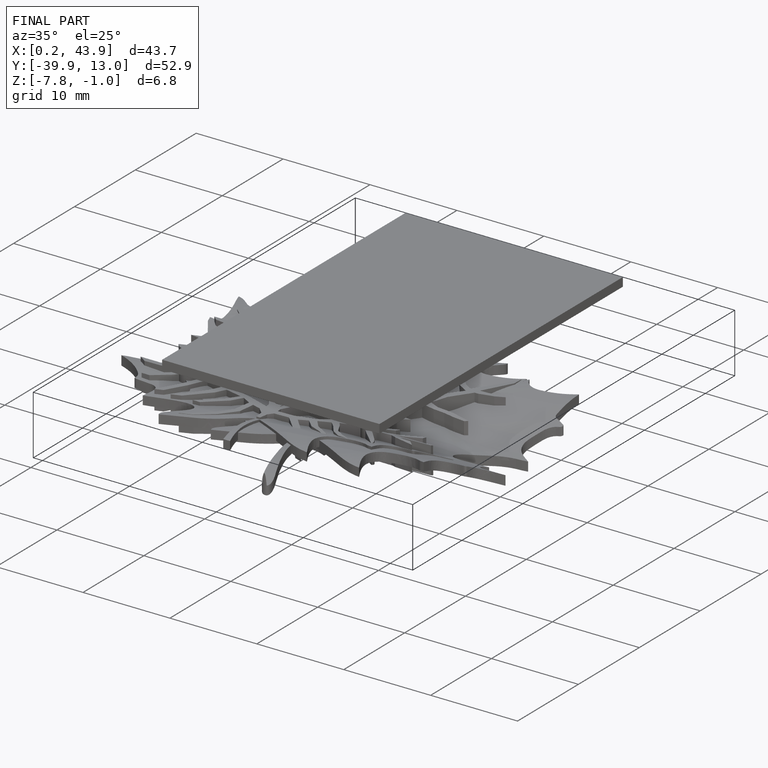
[diagram: finished part — iso view with bounding-box wireframe]
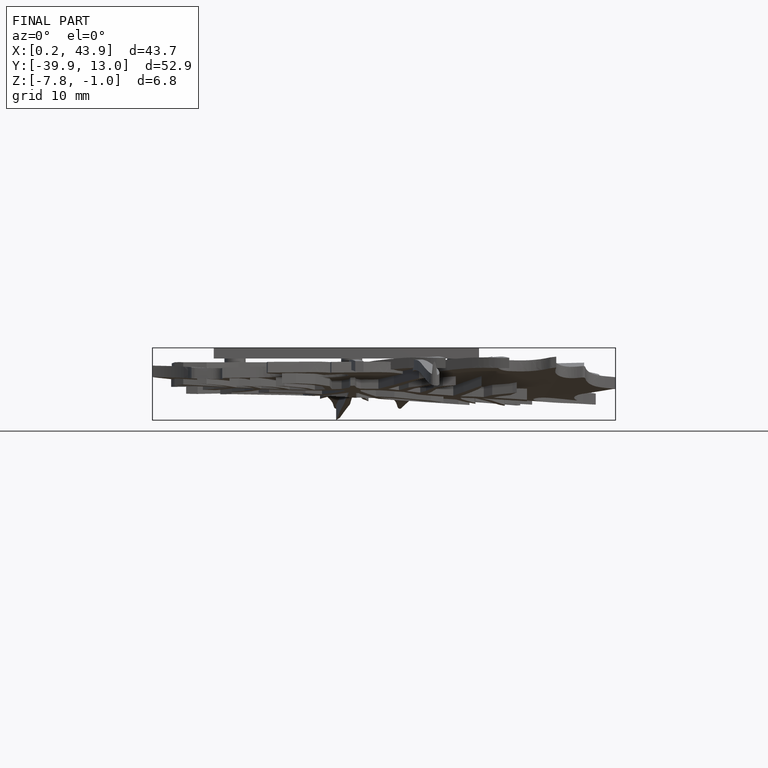
[diagram: finished part — front view with bounding-box wireframe]
